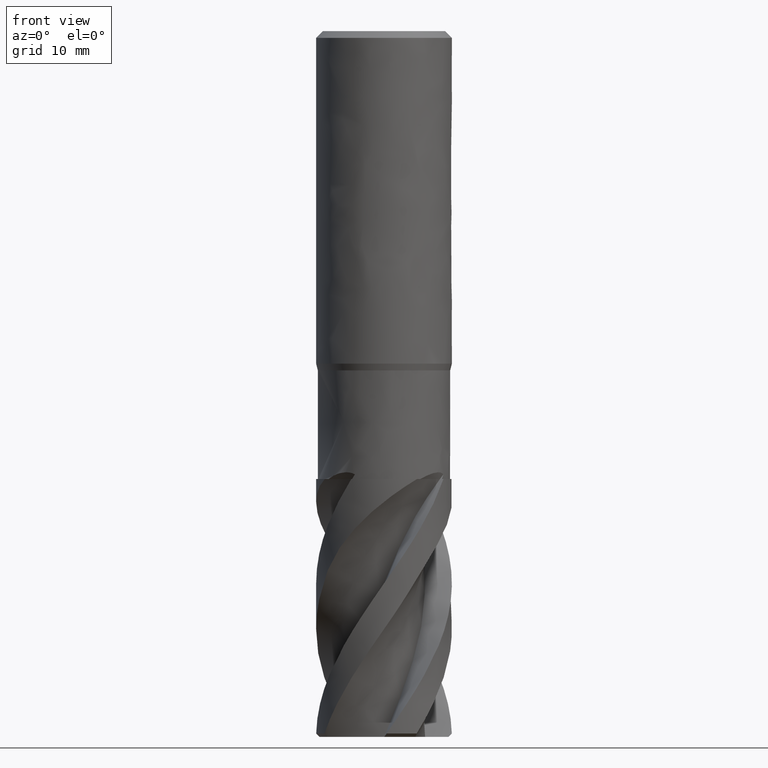
[diagram: clean part render]
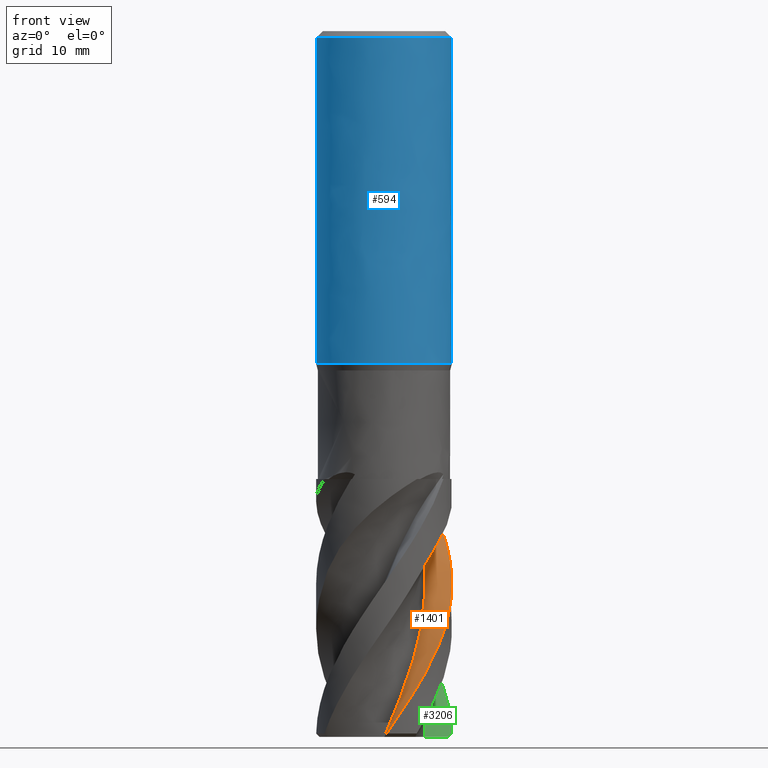
[diagram: same view with three faces highlighted in distinct colors, each labeled with its STEP entity id]
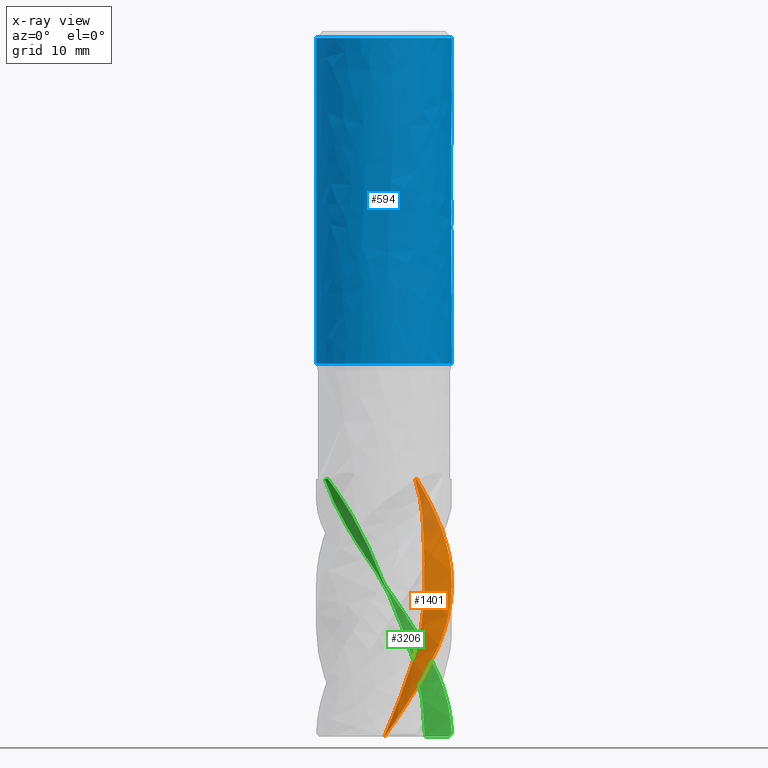
[diagram: x-ray of the same camera — body ghosted, the three highlighted faces saturated]
A machine part, front view with three faces highlighted in distinct colors.
The next image is the same camera in x-ray (body ghosted, the three faces saturated) — at least one of them is partly hidden behind the body in this view.
Their STEP definitions:

[orange] entity #1401 — the highlighted face is a freeform B-spline surface patch.
#1401 = ADVANCED_FACE('', (#1402), #1637, .T.);
#1402 = FACE_OUTER_BOUND('', #1403, .T.);
#1403 = EDGE_LOOP('', (#1404, #1414, #1445, #1453, #1462));
#1404 = ORIENTED_EDGE('', *, *, #1405, .F.);
#1405 = EDGE_CURVE('', #1406, #1408, #1410, .T.);
#1406 = VERTEX_POINT('', #1407);
#1407 = CARTESIAN_POINT('', (4.54373744884962, 8.24481654069184, -66.));
#1408 = VERTEX_POINT('', #1409);
#1409 = CARTESIAN_POINT('', (4.82659777095646, 8.75807935322569, -66.));
#1410 = LINE('', #1411, #1412);
#1411 = CARTESIAN_POINT('', (4.54373744884961, 8.24481654069185, -66.));
#1412 = VECTOR('', #1413, 0.586044944140416);
#1413 = DIRECTION('', (0.282860322106847, 0.513262812533846, 0.));
#1414 = ORIENTED_EDGE('', *, *, #1415, .F.);
#1415 = EDGE_CURVE('', #1416, #1406, #1418, .T.);
#1416 = VERTEX_POINT('', #1417);
#1417 = CARTESIAN_POINT('', (0.0210061638817225, -6.05980952317124, -104.));
#1418 = B_SPLINE_CURVE_WITH_KNOTS('', 3, (#1419, #1420, #1421, #1422, #1423, #1424, #1425, #1426, #1427, #1428, #1429, #1430, #1431, #1432, #1433, #1434, #1435, #1436, #1437, #1438, #1439, #1440, #1441, #1442, #1443, #1444), .UNSPECIFIED., .F., .U., (4, 1, 1, 1, 1, 1, 1, 1, 1, 1, 1, 1, 1, 1, 1, 1, 1, 1, 1, 1, 1, 1, 1, 4), (0.0499999999999916, 3.124, 4.686, 6.248, 7.81, 9.372, 10.934, 12.496, 14.058, 15.62, 17.182, 18.744, 20.306, 21.868, 23.43, 24.992, 26.554, 28.116, 29.678, 31.24, 32.802, 34.364, 35.926, 38.05), .UNSPECIFIED.);
#1419 = CARTESIAN_POINT('', (0.0210061638817183, -6.05980952317124, -104.));
#1420 = CARTESIAN_POINT('', (0.451478921269695, -6.05516728982624, -102.975333333333));
#1421 = CARTESIAN_POINT('', (1.09935672825959, -5.97968307938365, -101.43));
#1422 = CARTESIAN_POINT('', (1.93499733724724, -5.74506389234829, -99.364));
#1423 = CARTESIAN_POINT('', (2.54422500359819, -5.50162236334445, -97.802));
#1424 = CARTESIAN_POINT('', (3.12412444108722, -5.19483514754467, -96.24));
#1425 = CARTESIAN_POINT('', (3.66824456030732, -4.82810837840585, -94.678));
#1426 = CARTESIAN_POINT('', (4.17050613968466, -4.40548017147386, -93.116));
#1427 = CARTESIAN_POINT('', (4.62530372034135, -3.93161951667552, -91.554));
#1428 = CARTESIAN_POINT('', (5.02741938781425, -3.41164718816434, -89.992));
#1429 = CARTESIAN_POINT('', (5.37261513881706, -2.85157204005346, -88.43));
#1430 = CARTESIAN_POINT('', (5.65567038822671, -2.25641080543849, -86.868));
#1431 = CARTESIAN_POINT('', (5.85778492249725, -1.62889172666529, -85.306));
#1432 = CARTESIAN_POINT('', (5.97804394589137, -0.982432836130098, -83.744));
#1433 = CARTESIAN_POINT('', (6.0143187648056, -0.327622832683388, -82.182));
#1434 = CARTESIAN_POINT('', (5.96505771265827, 0.320183963239846, -80.62));
#1435 = CARTESIAN_POINT('', (5.93773006534497, 0.966344318816848, -79.058));
#1436 = CARTESIAN_POINT('', (5.91226307926383, 1.63124315779631, -77.496));
#1437 = CARTESIAN_POINT('', (5.88528136029755, 2.33066014168337, -75.934));
#1438 = CARTESIAN_POINT('', (5.84342040346166, 3.07928433564888, -74.372));
#1439 = CARTESIAN_POINT('', (5.77096522685264, 3.88873048805125, -72.81));
#1440 = CARTESIAN_POINT('', (5.64846437319031, 4.76710713012935, -71.248));
#1441 = CARTESIAN_POINT('', (5.4539111476265, 5.71832667276983, -69.686));
#1442 = CARTESIAN_POINT('', (5.12855741870002, 6.86417230553523, -67.9366666666667));
#1443 = CARTESIAN_POINT('', (4.78778915362057, 7.7304629707723, -66.708));
#1444 = CARTESIAN_POINT('', (4.54373744884962, 8.24481654069184, -66.));
#1445 = ORIENTED_EDGE('', *, *, #1446, .T.);
#1446 = EDGE_CURVE('', #1416, #1447, #1449, .T.);
#1447 = VERTEX_POINT('', #1448);
#1448 = CARTESIAN_POINT('', (0.0329312921690224, -9.4999429224599, -104.));
#1449 = LINE('', #1450, #1451);
#1450 = CARTESIAN_POINT('', (0.0210061638817225, -6.05980952317124, -104.));
#1451 = VECTOR('', #1452, 3.440154068292);
#1452 = DIRECTION('', (0.0119251282873042, -3.44013339928866, 1.4210854715202E-14));
#1453 = ORIENTED_EDGE('', *, *, #1454, .T.);
#1454 = EDGE_CURVE('', #1447, #1455, #1457, .T.);
#1455 = VERTEX_POINT('', #1456);
#1456 = CARTESIAN_POINT('', (0.381212165986018, -9.99273122246887, -103.5));
#1457 = B_SPLINE_CURVE_WITH_KNOTS('', 3, (#1458, #1459, #1460, #1461), .UNSPECIFIED., .F., .U., (4, 4), (0., 0.783670769961757), .UNSPECIFIED.);
#1458 = CARTESIAN_POINT('', (0.032931292169022, -9.4999429224599, -104.));
#1459 = CARTESIAN_POINT('', (0.143794365409603, -9.66700418012523, -103.832555444565));
#1460 = CARTESIAN_POINT('', (0.259989500001834, -9.83137893060818, -103.665856163976));
#1461 = CARTESIAN_POINT('', (0.38121216598601, -9.99273122246887, -103.5));
#1462 = ORIENTED_EDGE('', *, *, #1463, .T.);
#1463 = EDGE_CURVE('', #1455, #1408, #1464, .T.);
#1464 = B_SPLINE_CURVE_WITH_KNOTS('', 3, (#1465, #1466, #1467, #1468, #1469, #1470, #1471, #1472, #1473, #1474, #1475, #1476, #1477, #1478, #1479, #1480, #1481, #1482, #1483, #1484, #1485, #1486, #1487, #1488, #1489, #1490, #1491, #1492, #1493, #1494, #1495, #1496, #1497, #1498, #1499, #1500, #1501, #1502, #1503, #1504, #1505, #1506, #1507, #1508, #1509, #1510, #1511, #1512, #1513, #1514, #1515, #1516, #1517, #1518, #1519, #1520, #1521, #1522, #1523, #1524, #1525, #1526, #1527, #1528, #1529, #1530, #1531, #1532, #1533, #1534, #1535, #1536, #1537, #1538, #1539, #1540, #1541, #1542, #1543, #1544, #1545, #1546, #1547, #1548, #1549, #1550, #1551, #1552, #1553, #1554, #1555, #1556, #1557, #1558, #1559, #1560, #1561, #1562, #1563, #1564, #1565, #1566, #1567, #1568, #1569, #1570, #1571, #1572, #1573, #1574, #1575, #1576, #1577, #1578, #1579, #1580, #1581, #1582, #1583, #1584, #1585, #1586, #1587, #1588, #1589, #1590, #1591, #1592, #1593, #1594, #1595, #1596, #1597, #1598, #1599, #1600, #1601, #1602, #1603, #1604, #1605, #1606, #1607, #1608, #1609, #1610, #1611, #1612, #1613, #1614, #1615, #1616, #1617, #1618, #1619, #1620, #1621, #1622, #1623, #1624, #1625, #1626, #1627, #1628, #1629, #1630, #1631, #1632, #1633, #1634, #1635, #1636), .UNSPECIFIED., .F., .U., (4, 3, 3, 3, 3, 3, 3, 3, 3, 3, 3, 3, 3, 3, 3, 3, 3, 3, 3, 3, 3, 3, 3, 3, 3, 3, 3, 3, 3, 3, 3, 3, 3, 3, 3, 3, 3, 3, 3, 3, 3, 3, 3, 3, 3, 3, 3, 3, 3, 3, 3, 3, 3, 3, 3, 3, 3, 4), (0., 1.50019389703991, 2.9998743749866, 4.49905475742759, 5.49770750414473, 6.49622074612984, 7.49459598662728, 8.49283549884524, 9.49094023268371, 10.4889117743659, 11.4867509465896, 12.4844588771655, 13.4820357447394, 14.4794818466203, 15.4767982398034, 16.4739827422443, 17.4710358254384, 18.1358123858625, 18.5790458597469, 19.5757821239086, 20.2404083912893, 21.2369224862458, 22.2332867542758, 23.2295110322367, 24.2256323112436, 25.2215687936951, 25.8857991145401, 26.3287939679017, 26.7718309210119, 26.9031704834833, 27.3469670084975, 27.7907324079612, 28.2344483481404, 29.2338625427268, 29.6775540322148, 30.1212449151081, 31.120482271153, 31.7861601175669, 32.7850812661084, 33.7838565024265, 34.7824711915549, 35.4478980948708, 36.1132791624477, 36.7786120260139, 37.4439032928942, 38.1091490221567, 38.7743474531606, 39.4395054949006, 40.1046163156368, 40.7696809158311, 41.4347063498659, 42.0996854451412, 42.7646222712351, 43.4295220463284, 44.094368312011, 44.7591675688588, 45.4239289212549, 45.6286047567852), .UNSPECIFIED.);
#1465 = CARTESIAN_POINT('', (0.381212165986021, -9.99273122246887, -103.5));
#1466 = CARTESIAN_POINT('', (0.665914972821524, -9.98187011040253, -103.08903651677));
#1467 = CARTESIAN_POINT('', (0.950235794316265, -9.95882652936517, -102.677950220319));
#1468 = CARTESIAN_POINT('', (1.23297221649105, -9.92369787495385, -102.266987047104));
#1469 = CARTESIAN_POINT('', (1.51561187632212, -9.88858124280307, -101.856164519934));
#1470 = CARTESIAN_POINT('', (1.79683375773521, -9.84136711242229, -101.445220699274));
#1471 = CARTESIAN_POINT('', (2.07544469071456, -9.78225584084702, -101.034397976449));
#1472 = CARTESIAN_POINT('', (2.35396271585289, -9.72316428099148, -100.62371224987));
#1473 = CARTESIAN_POINT('', (2.63003691110684, -9.65214847773068, -100.212905107744));
#1474 = CARTESIAN_POINT('', (2.90249814518238, -9.56950910534146, -99.8022197307876));
#1475 = CARTESIAN_POINT('', (3.083993422849, -9.51446033523342, -99.5286488619733));
#1476 = CARTESIAN_POINT('', (3.26394558711793, -9.45423873593147, -99.2550419580644));
#1477 = CARTESIAN_POINT('', (3.44201644613317, -9.38895749189167, -98.9814710321316));
#1478 = CARTESIAN_POINT('', (3.62006242990769, -9.32368536718037, -98.7079383221241));
#1479 = CARTESIAN_POINT('', (3.79627433708064, -9.25333788134955, -98.4343697463546));
#1480 = CARTESIAN_POINT('', (3.9703206790897, -9.17804737976399, -98.1608369745504));
#1481 = CARTESIAN_POINT('', (4.14434296668154, -9.10276728385037, -97.8873420068813));
#1482 = CARTESIAN_POINT('', (4.3162459125925, -9.0225258155825, -97.6138110159751));
#1483 = CARTESIAN_POINT('', (4.48570680129825, -8.93747360794909, -97.3403160874379));
#1484 = CARTESIAN_POINT('', (4.65514465193782, -8.85243296309222, -97.0668583403077));
#1485 = CARTESIAN_POINT('', (4.82218543019962, -8.76256062864425, -96.7933647961833));
#1486 = CARTESIAN_POINT('', (4.98651504249611, -8.66802559588744, -96.5199070442787));
#1487 = CARTESIAN_POINT('', (5.15082246765358, -8.57350332687958, -96.246486213566));
#1488 = CARTESIAN_POINT('', (5.31246257889584, -8.47429482428779, -95.9730294587141));
#1489 = CARTESIAN_POINT('', (5.47113194119559, -8.37058631650312, -95.6996086861888));
#1490 = CARTESIAN_POINT('', (5.62978012985116, -8.26689164810755, -95.4262244003177));
#1491 = CARTESIAN_POINT('', (5.78549979636941, -8.15867108426631, -95.1528042599496));
#1492 = CARTESIAN_POINT('', (5.93799834491191, -8.04612799151388, -94.8794198332813));
#1493 = CARTESIAN_POINT('', (6.09047666627412, -7.93359982630962, -94.606071667916));
#1494 = CARTESIAN_POINT('', (6.23977477843777, -7.81672073179947, -94.3326876077699));
#1495 = CARTESIAN_POINT('', (6.38561261309442, -7.69570994486469, -94.05933954872));
#1496 = CARTESIAN_POINT('', (6.53143126630555, -7.57471507397682, -93.7860274420067));
#1497 = CARTESIAN_POINT('', (6.67382860271253, -7.4495580146769, -93.5126795460522));
#1498 = CARTESIAN_POINT('', (6.81253725263981, -7.32047376755049, -93.2393674283905));
#1499 = CARTESIAN_POINT('', (6.95122768123044, -7.19140647745972, -92.9660912141285));
#1500 = CARTESIAN_POINT('', (7.08626682744031, -7.05837912382121, -92.692779252469));
#1501 = CARTESIAN_POINT('', (7.21740116601184, -6.92164145335851, -92.4195030472128));
#1502 = CARTESIAN_POINT('', (7.34851831505822, -6.78492170692433, -92.1462626639103));
#1503 = CARTESIAN_POINT('', (7.4757658739498, -6.64445698266511, -91.8729862856165));
#1504 = CARTESIAN_POINT('', (7.59890550808496, -6.5005103706706, -91.5997459037057));
#1505 = CARTESIAN_POINT('', (7.7220291290425, -6.35658247760994, -91.3265410541952));
#1506 = CARTESIAN_POINT('', (7.84107843747769, -6.20913551709406, -91.0533009823612));
#1507 = CARTESIAN_POINT('', (7.95582953207273, -6.05844670328949, -90.7800966231023));
#1508 = CARTESIAN_POINT('', (8.07056545133611, -5.90777781742318, -90.5069283939281));
#1509 = CARTESIAN_POINT('', (8.18103414920721, -5.75382865754207, -90.2337241786196));
#1510 = CARTESIAN_POINT('', (8.28702686353159, -5.5968907228126, -89.9605532524203));
#1511 = CARTESIAN_POINT('', (8.39300560904414, -5.43997347098094, -89.6874183274999));
#1512 = CARTESIAN_POINT('', (8.4945371129414, -5.28002782108503, -89.414244742144));
#1513 = CARTESIAN_POINT('', (8.59143559714708, -5.11734641978379, -89.1411098833958));
#1514 = CARTESIAN_POINT('', (8.65604182737324, -5.00887999585426, -88.9589995675148));
#1515 = CARTESIAN_POINT('', (8.71859845683832, -4.89918178971349, -88.7768800913626));
#1516 = CARTESIAN_POINT('', (8.77905539893496, -4.78833857433148, -88.5947761731993));
#1517 = CARTESIAN_POINT('', (8.81936449233746, -4.71443491055166, -88.4733601109301));
#1518 = CARTESIAN_POINT('', (8.85874347881305, -4.64001632529936, -88.3519440302105));
#1519 = CARTESIAN_POINT('', (8.89717599190995, -4.56511329202038, -88.2305318716323));
#1520 = CARTESIAN_POINT('', (8.98360240549023, -4.3966725627799, -87.9575021739777));
#1521 = CARTESIAN_POINT('', (9.06525110959404, -4.22576031910591, -87.684432004459));
#1522 = CARTESIAN_POINT('', (9.141962079488, -4.05271875871043, -87.4113769449808));
#1523 = CARTESIAN_POINT('', (9.19311314865337, -3.93733420762851, -87.2293031392053));
#1524 = CARTESIAN_POINT('', (9.24207790372011, -3.82098477926706, -87.0472109123807));
#1525 = CARTESIAN_POINT('', (9.28882250992175, -3.70375166272942, -86.8651333590343));
#1526 = CARTESIAN_POINT('', (9.35890950652318, -3.52797700746962, -86.5921335436643));
#1527 = CARTESIAN_POINT('', (9.42402080062989, -3.35017183783182, -86.3191108523516));
#1528 = CARTESIAN_POINT('', (9.48402907192758, -3.17067698809456, -86.0461302266472));
#1529 = CARTESIAN_POINT('', (9.54402832091951, -2.99120912559393, -85.7731906438626));
#1530 = CARTESIAN_POINT('', (9.59894112192461, -2.81000604379958, -85.5002210868296));
#1531 = CARTESIAN_POINT('', (9.64865770208628, -2.62743307202507, -85.2272741853356));
#1532 = CARTESIAN_POINT('', (9.69836729702405, -2.44488575191607, -84.9543656331248));
#1533 = CARTESIAN_POINT('', (9.7428971125946, -2.26091792894368, -84.6814109802501));
#1534 = CARTESIAN_POINT('', (9.78217068622416, -2.07584601200976, -84.4085014389102));
#1535 = CARTESIAN_POINT('', (9.8214401993855, -1.89079322953612, -84.135620113503));
#1536 = CARTESIAN_POINT('', (9.8554653315118, -1.7045849802937, -83.8627148261836));
#1537 = CARTESIAN_POINT('', (9.8841814662907, -1.51754958450634, -83.5898705683236));
#1538 = CARTESIAN_POINT('', (9.91289227376367, -1.33054888680002, -83.3170769274719));
#1539 = CARTESIAN_POINT('', (9.93629917091784, -1.14268725194747, -83.0442624804047));
#1540 = CARTESIAN_POINT('', (9.95435118366563, -0.954406890301293, -82.7714354799966));
#1541 = CARTESIAN_POINT('', (9.96639080108164, -0.828835102111321, -82.5894761189235));
#1542 = CARTESIAN_POINT('', (9.97605127959485, -0.70305899591643, -82.4074847189199));
#1543 = CARTESIAN_POINT('', (9.98332757143547, -0.577209322011025, -82.225464526046));
#1544 = CARTESIAN_POINT('', (9.98818034574551, -0.493276451005678, -82.1040698740397));
#1545 = CARTESIAN_POINT('', (9.99197336499975, -0.409309333992007, -81.9826519122623));
#1546 = CARTESIAN_POINT('', (9.99470775244356, -0.325295163266436, -81.8612472993679));
#1547 = CARTESIAN_POINT('', (9.99744239974824, -0.241273008304841, -81.7398311488594));
#1548 = CARTESIAN_POINT('', (9.99911819092171, -0.157198593194528, -81.618422668708));
#1549 = CARTESIAN_POINT('', (9.99973294812989, -0.0730819135323162, -81.4970427333778));
#1550 = CARTESIAN_POINT('', (9.99991519464947, -0.0481452850505928, -81.461059306968));
#1551 = CARTESIAN_POINT('', (10.0000041856459, -0.0232048666532969, -81.4250779134358));
#1552 = CARTESIAN_POINT('', (9.99999984885575, 0.00173864458913075, -81.3890987964634));
#1553 = CARTESIAN_POINT('', (9.99998519483709, 0.0860227963156844, -81.2675253209245));
#1554 = CARTESIAN_POINT('', (9.99890476216977, 0.170347092871089, -81.1459751182407));
#1555 = CARTESIAN_POINT('', (9.99675669278046, 0.254667676294202, -81.0244458896136));
#1556 = CARTESIAN_POINT('', (9.99460877404542, 0.33898234591578, -80.9029251844063));
#1557 = CARTESIAN_POINT('', (9.99139303662584, 0.423297672962281, -80.7814191244146));
#1558 = CARTESIAN_POINT('', (9.98711166144725, 0.507543753566461, -80.659907287165));
#1559 = CARTESIAN_POINT('', (9.98283076344366, 0.591780444635373, -80.5384089928562));
#1560 = CARTESIAN_POINT('', (9.9774849027045, 0.675945362661637, -80.4168937808918));
#1561 = CARTESIAN_POINT('', (9.97107777576445, 0.760005256334671, -80.2953665628295));
#1562 = CARTESIAN_POINT('', (9.95664653038747, 0.949339565348505, -80.0216418309414));
#1563 = CARTESIAN_POINT('', (9.93682853879009, 1.13817248089157, -79.7478010585479));
#1564 = CARTESIAN_POINT('', (9.9116658305211, 1.32622790804688, -79.47397088364));
#1565 = CARTESIAN_POINT('', (9.90049480696361, 1.4097154080572, -79.3524035506666));
#1566 = CARTESIAN_POINT('', (9.88826943823008, 1.49305818737372, -79.2308290567183));
#1567 = CARTESIAN_POINT('', (9.87499227582164, 1.576238418661, -79.1092628732916));
#1568 = CARTESIAN_POINT('', (9.86171513156514, 1.65941853622806, -78.9876968560646));
#1569 = CARTESIAN_POINT('', (9.84738506172949, 1.74244245297301, -78.8661342955398));
#1570 = CARTESIAN_POINT('', (9.83200688306774, 1.82527823942231, -78.7445807881166));
#1571 = CARTESIAN_POINT('', (9.79737364813051, 2.01183292293924, -78.4708298275751));
#1572 = CARTESIAN_POINT('', (9.75741548189679, 2.1974680255325, -78.1970725748542));
#1573 = CARTESIAN_POINT('', (9.71220977541694, 2.38180210729109, -77.923359057275));
#1574 = CARTESIAN_POINT('', (9.6820943707505, 2.50460287512008, -77.7410149687416));
#1575 = CARTESIAN_POINT('', (9.64964656927599, 2.62684353852652, -77.5586631234595));
#1576 = CARTESIAN_POINT('', (9.61489696468763, 2.74840978721163, -77.37631607807));
#1577 = CARTESIAN_POINT('', (9.5627514484837, 2.9308330080152, -77.1026847397359));
#1578 = CARTESIAN_POINT('', (9.50541014517108, 3.11177844998545, -76.8290051407582));
#1579 = CARTESIAN_POINT('', (9.44298057926158, 3.29091442910465, -76.5553550979072));
#1580 = CARTESIAN_POINT('', (9.38056013242696, 3.47002424186525, -76.2817450270661));
#1581 = CARTESIAN_POINT('', (9.31303565554249, 3.64737518223184, -76.0080947889057));
#1582 = CARTESIAN_POINT('', (9.24052728253352, 3.82265032938589, -75.7344887460091));
#1583 = CARTESIAN_POINT('', (9.16803056481504, 3.99789730210058, -75.4609266836595));
#1584 = CARTESIAN_POINT('', (9.09053508422156, 4.17110779056317, -75.1873315758993));
#1585 = CARTESIAN_POINT('', (9.00818861643051, 4.34195092680836, -74.9137714188537));
#1586 = CARTESIAN_POINT('', (8.95331704718788, 4.45579225153757, -74.7314846067777));
#1587 = CARTESIAN_POINT('', (8.89628391094961, 4.56859975873662, -74.549187089021));
#1588 = CARTESIAN_POINT('', (8.83713586215609, 4.68028094816911, -74.3669014932244));
#1589 = CARTESIAN_POINT('', (8.77799188758096, 4.79195444481097, -74.1846284535702));
#1590 = CARTESIAN_POINT('', (8.71672656215689, 4.90251432905176, -74.0023457366703));
#1591 = CARTESIAN_POINT('', (8.65339295515198, 5.01186495864824, -73.8200719464641));
#1592 = CARTESIAN_POINT('', (8.59006393639585, 5.12120766625958, -73.6378113612139));
#1593 = CARTESIAN_POINT('', (8.52465955329713, 5.22935417423097, -73.4555385307089));
#1594 = CARTESIAN_POINT('', (8.45723381646016, 5.33621552916698, -73.2732757147169));
#1595 = CARTESIAN_POINT('', (8.38981229508787, 5.44307020311901, -73.0910242938167));
#1596 = CARTESIAN_POINT('', (8.32036163418251, 5.54865268631194, -72.9087619082389));
#1597 = CARTESIAN_POINT('', (8.24893744215978, 5.65287812316297, -72.7265126108005));
#1598 = CARTESIAN_POINT('', (8.17751813895452, 5.7570964260287, -72.5442757878965));
#1599 = CARTESIAN_POINT('', (8.10411822624973, 5.85996841668445, -72.3620295142679));
#1600 = CARTESIAN_POINT('', (8.02880118706831, 5.96140516141375, -72.1797924116451));
#1601 = CARTESIAN_POINT('', (7.95348950284768, 6.06283469409918, -71.9975682658851));
#1602 = CARTESIAN_POINT('', (7.87625217647623, 6.16284114039405, -71.8153321333771));
#1603 = CARTESIAN_POINT('', (7.79715263508954, 6.26134257049686, -71.6331065314464));
#1604 = CARTESIAN_POINT('', (7.71805789643854, 6.35983801982754, -71.4508919938201));
#1605 = CARTESIAN_POINT('', (7.63709129284904, 6.45684094539999, -71.2686674873394));
#1606 = CARTESIAN_POINT('', (7.55431866833124, 6.55227208358308, -71.0864559085662));
#1607 = CARTESIAN_POINT('', (7.47155192002057, 6.64769644690385, -70.904257265386));
#1608 = CARTESIAN_POINT('', (7.38697138790686, 6.74155837438778, -70.7220485409803));
#1609 = CARTESIAN_POINT('', (7.30065020563192, 6.83377688946651, -70.5398484084744));
#1610 = CARTESIAN_POINT('', (7.21433502207432, 6.92598899600459, -70.3576609376012));
#1611 = CARTESIAN_POINT('', (7.12626935130379, 7.01656879802021, -70.1754609145591));
#1612 = CARTESIAN_POINT('', (7.03652515155225, 7.10544254720089, -69.9932711965027));
#1613 = CARTESIAN_POINT('', (6.9467862369048, 7.19431106253898, -69.8110922077371));
#1614 = CARTESIAN_POINT('', (6.85535735618798, 7.28148521949007, -69.628903441534));
#1615 = CARTESIAN_POINT('', (6.76231410609024, 7.36689269166947, -69.4467266398404));
#1616 = CARTESIAN_POINT('', (6.66927733921641, 7.45229421268353, -69.2645625321681));
#1617 = CARTESIAN_POINT('', (6.57461716605446, 7.53593776353226, -69.0823876772638));
#1618 = CARTESIAN_POINT('', (6.47841349441721, 7.61775285732959, -68.9002224613296));
#1619 = CARTESIAN_POINT('', (6.38221593793526, 7.69956275057691, -68.7180688246685));
#1620 = CARTESIAN_POINT('', (6.28446383522098, 7.7795540777312, -68.5359036948798));
#1621 = CARTESIAN_POINT('', (6.18523507048135, 7.8576629555414, -68.3537514747161));
#1622 = CARTESIAN_POINT('', (6.08601183487602, 7.93576748104029, -68.1716094042715));
#1623 = CARTESIAN_POINT('', (5.985297900887, 8.01200078461095, -67.9894612978289));
#1624 = CARTESIAN_POINT('', (5.88318128842664, 8.08629568637622, -67.8073246286912));
#1625 = CARTESIAN_POINT('', (5.78107289404661, 8.16058460908035, -67.6252026174407));
#1626 = CARTESIAN_POINT('', (5.67755216490629, 8.23294262544958, -67.4430691166411));
#1627 = CARTESIAN_POINT('', (5.57271043628441, 8.30330647352769, -67.2609413152363));
#1628 = CARTESIAN_POINT('', (5.46787612063564, 8.37366534643683, -67.0788263914186));
#1629 = CARTESIAN_POINT('', (5.36170874574085, 8.44203866411742, -66.896696049198));
#1630 = CARTESIAN_POINT('', (5.25429589421937, 8.50837085792513, -66.7145725482312));
#1631 = CARTESIAN_POINT('', (5.1468891669906, 8.5746992697108, -66.5324594312885));
#1632 = CARTESIAN_POINT('', (5.03822454772495, 8.63899462704441, -66.3503320427392));
#1633 = CARTESIAN_POINT('', (4.92838663755549, 8.70120710883062, -66.1682164442139));
#1634 = CARTESIAN_POINT('', (4.89456823647697, 8.72036194032633, -66.1121441979004));
#1635 = CARTESIAN_POINT('', (4.86063780520809, 8.73931981168515, -66.0560717780806));
#1636 = CARTESIAN_POINT('', (4.82659777095646, 8.75807935322569, -66.));
#1637 = B_SPLINE_SURFACE_WITH_KNOTS('', 3, 1, ((#1638, #1639), (#1640, #1641), (#1642, #1643), (#1644, #1645), (#1646, #1647), (#1648, #1649), (#1650, #1651), (#1652, #1653), (#1654, #1655), (#1656, #1657), (#1658, #1659), (#1660, #1661), (#1662, #1663), (#1664, #1665), (#1666, #1667), (#1668, #1669), (#1670, #1671), (#1672, #1673), (#1674, #1675), (#1676, #1677), (#1678, #1679), (#1680, #1681), (#1682, #1683), (#1684, #1685), (#1686, #1687), (#1688, #1689)), .UNSPECIFIED., .F., .F., .U., (4, 1, 1, 1, 1, 1, 1, 1, 1, 1, 1, 1, 1, 1, 1, 1, 1, 1, 1, 1, 1, 1, 1, 4), (2, 2), (0.0499999999999694, 3.124, 4.686, 6.248, 7.81, 9.372, 10.934, 12.496, 14.058, 15.62, 17.182, 18.744, 20.306, 21.868, 23.43, 24.992, 26.554, 28.116, 29.678, 31.24, 32.802, 34.364, 35.926, 38.0500000000001), (0.192284066932546, 1.), .UNSPECIFIED.);
#1638 = CARTESIAN_POINT('', (0.0351453415982776, -10.138646775854, -104.));
#1639 = CARTESIAN_POINT('', (0.021006163881709, -6.05980952317124, -104.));
#1640 = CARTESIAN_POINT('', (0.755367853064384, -10.1308798709775, -102.975333333333));
#1641 = CARTESIAN_POINT('', (0.451478921269689, -6.05516728982624, -102.975333333333));
#1642 = CARTESIAN_POINT('', (1.83933001620974, -10.0045874943104, -101.43));
#1643 = CARTESIAN_POINT('', (1.09935672825959, -5.97968307938365, -101.43));
#1644 = CARTESIAN_POINT('', (3.23743748702865, -9.61204692763182, -99.364));
#1645 = CARTESIAN_POINT('', (1.93499733724724, -5.74506389234829, -99.364));
#1646 = CARTESIAN_POINT('', (4.25673423086057, -9.20474573050573, -97.802));
#1647 = CARTESIAN_POINT('', (2.54422500359819, -5.50162236334445, -97.802));
#1648 = CARTESIAN_POINT('', (5.22696201438023, -8.69146107948689, -96.24));
#1649 = CARTESIAN_POINT('', (3.12412444108722, -5.19483514754467, -96.24));
#1650 = CARTESIAN_POINT('', (6.13732754176419, -8.07789176491825, -94.678));
#1651 = CARTESIAN_POINT('', (3.66824456030732, -4.82810837840585, -94.678));
#1652 = CARTESIAN_POINT('', (6.97765968800044, -7.37079394423401, -93.116));
#1653 = CARTESIAN_POINT('', (4.17050613968466, -4.40548017147386, -93.116));
#1654 = CARTESIAN_POINT('', (7.73857997883792, -6.57797928865701, -91.554));
#1655 = CARTESIAN_POINT('', (4.62530372034135, -3.93161951667552, -91.554));
#1656 = CARTESIAN_POINT('', (8.41135833927241, -5.70801534806861, -89.992));
#1657 = CARTESIAN_POINT('', (5.02741938781425, -3.41164718816434, -89.992));
#1658 = CARTESIAN_POINT('', (8.98890418036869, -4.77095551592084, -88.43));
#1659 = CARTESIAN_POINT('', (5.37261513881706, -2.85157204005346, -88.43));
#1660 = CARTESIAN_POINT('', (9.46248295885046, -3.77519327135368, -86.868));
#1661 = CARTESIAN_POINT('', (5.65567038822671, -2.25641080543849, -86.868));
#1662 = CARTESIAN_POINT('', (9.80064010115003, -2.72529322738972, -85.306));
#1663 = CARTESIAN_POINT('', (5.85778492249725, -1.62889172666529, -85.306));
#1664 = CARTESIAN_POINT('', (10.0018450656196, -1.64370504855587, -83.744));
#1665 = CARTESIAN_POINT('', (5.97804394589137, -0.982432836130098, -83.744));
#1666 = CARTESIAN_POINT('', (10.0625363422056, -0.548144651012613, -82.182));
#1667 = CARTESIAN_POINT('', (6.0143187648056, -0.327622832683388, -82.182));
#1668 = CARTESIAN_POINT('', (9.9801178428091, 0.535698703757766, -80.62));
#1669 = CARTESIAN_POINT('', (5.96505771265827, 0.320183963239846, -80.62));
#1670 = CARTESIAN_POINT('', (9.93439604870563, 1.61678740476483, -79.058));
#1671 = CARTESIAN_POINT('', (5.93773006534497, 0.966344318816848, -79.058));
#1672 = CARTESIAN_POINT('', (9.8917873206037, 2.72922739884576, -77.496));
#1673 = CARTESIAN_POINT('', (5.91226307926383, 1.63124315779631, -77.496));
#1674 = CARTESIAN_POINT('', (9.84664429804525, 3.8994195841858, -75.934));
#1675 = CARTESIAN_POINT('', (5.88528136029755, 2.33066014168337, -75.934));
#1676 = CARTESIAN_POINT('', (9.77660687303452, 5.1519401859394, -74.372));
#1677 = CARTESIAN_POINT('', (5.84342040346166, 3.07928433564888, -74.372));
#1678 = CARTESIAN_POINT('', (9.65538236260856, 6.50622180022138, -72.81));
#1679 = CARTESIAN_POINT('', (5.77096522685264, 3.88873048805125, -72.81));
#1680 = CARTESIAN_POINT('', (9.45042659951504, 7.97583078316679, -71.248));
#1681 = CARTESIAN_POINT('', (5.64846437319031, 4.76710713012935, -71.248));
#1682 = CARTESIAN_POINT('', (9.12492025718661, 9.56731297617049, -69.686));
#1683 = CARTESIAN_POINT('', (5.4539111476265, 5.71832667276983, -69.686));
#1684 = CARTESIAN_POINT('', (8.58057203597942, 11.4844234209529, -67.9366666666666));
#1685 = CARTESIAN_POINT('', (5.12855741870001, 6.86417230553526, -67.9366666666666));
#1686 = CARTESIAN_POINT('', (8.01043380657626, 12.9338113970064, -66.7079999999999));
#1687 = CARTESIAN_POINT('', (4.78778915362054, 7.73046297077236, -66.7079999999999));
#1688 = CARTESIAN_POINT('', (7.60211172644213, 13.7943746116377, -65.9999999999999));
#1689 = CARTESIAN_POINT('', (4.54373744884957, 8.24481654069194, -65.9999999999999));

[blue] entity #594 — the highlighted face is a freeform B-spline surface patch.
#504 = VERTEX_POINT('', #505);
#505 = CARTESIAN_POINT('', (-10., 3.61270805748469E-15, -49.));
#511 = EDGE_CURVE('', #504, #504, #512, .T.);
#512 = CIRCLE('', #513, 10.);
#513 = AXIS2_PLACEMENT_3D('', #514, #515, #516);
#514 = CARTESIAN_POINT('', (1.83720573376078E-31, 3.00038465791102E-15, -49.));
#515 = DIRECTION('', (3.74939945665464E-33, 6.12323399573677E-17, -1.));
#516 = DIRECTION('', (-1., 6.12323399573677E-17, 0.));
#543 = VERTEX_POINT('', #544);
#544 = CARTESIAN_POINT('', (-10., 6.73555739531045E-16, -1.));
#560 = EDGE_CURVE('', #543, #543, #561, .T.);
#561 = CIRCLE('', #562, 10.);
#562 = AXIS2_PLACEMENT_3D('', #563, #564, #565);
#563 = CARTESIAN_POINT('', (3.74939945665462E-33, 6.1232339957368E-17, -1.));
#564 = DIRECTION('', (3.74939945665464E-33, 6.12323399573677E-17, -1.));
#565 = DIRECTION('', (-1., 6.12323399573677E-17, 0.));
#594 = ADVANCED_FACE('', (#595, #606), #798, .T.);
#595 = FACE_OUTER_BOUND('', #596, .T.);
#596 = EDGE_LOOP('', (#597, #603, #604, #605));
#597 = ORIENTED_EDGE('', *, *, #598, .T.);
#598 = EDGE_CURVE('', #504, #543, #599, .T.);
#599 = LINE('', #600, #601);
#600 = CARTESIAN_POINT('', (-10., 3.61270805748469E-15, -49.));
#601 = VECTOR('', #602, 48.);
#602 = DIRECTION('', (0., -2.93915231795365E-15, 48.));
#603 = ORIENTED_EDGE('', *, *, #560, .T.);
#604 = ORIENTED_EDGE('', *, *, #598, .F.);
#605 = ORIENTED_EDGE('', *, *, #511, .F.);
#606 = FACE_BOUND('', #607, .T.);
#607 = EDGE_LOOP('', (#608, #700, #708, #792));
#608 = ORIENTED_EDGE('', *, *, #609, .F.);
#609 = EDGE_CURVE('', #610, #612, #614, .T.);
#610 = VERTEX_POINT('', #611);
#611 = CARTESIAN_POINT('', (-5.72363520850167, 8.2, -19.5));
#612 = VERTEX_POINT('', #613);
#613 = CARTESIAN_POINT('', (5.72363520850167, 8.2, -19.5));
#614 = B_SPLINE_CURVE_WITH_KNOTS('', 3, (#615, #616, #617, #618, #619, #620, #621, #622, #623, #624, #625, #626, #627, #628, #629, #630, #631, #632, #633, #634, #635, #636, #637, #638, #639, #640, #641, #642, #643, #644, #645, #646, #647, #648, #649, #650, #651, #652, #653, #654, #655, #656, #657, #658, #659, #660, #661, #662, #663, #664, #665, #666, #667, #668, #669, #670, #671, #672, #673, #674, #675, #676, #677, #678, #679, #680, #681, #682, #683, #684, #685, #686, #687, #688, #689, #690, #691, #692, #693, #694, #695, #696, #697, #698, #699), .UNSPECIFIED., .F., .U., (4, 3, 3, 3, 3, 3, 3, 3, 3, 3, 3, 3, 3, 3, 3, 3, 3, 3, 3, 3, 3, 3, 3, 3, 3, 3, 3, 3, 4), (0., 0.21483523043303, 0.65863517061522, 1.32502682191206, 1.99179739074618, 2.43602472815119, 2.8803816900067, 3.32487669560977, 3.76951701580744, 4.21430821751335, 4.65925360149793, 5.10435369908633, 5.54960590406211, 5.99500431249795, 6.43859379661985, 6.88218328074175, 7.3275816891776, 7.77283389415337, 8.21793399174177, 8.66287937572636, 9.10767057743226, 9.55231089762993, 9.996805903233, 10.4411628650885, 10.8853902024935, 11.5521607713276, 12.2185524226245, 12.6623523628067, 12.8771875932397), .UNSPECIFIED.);
#615 = CARTESIAN_POINT('', (-5.72363520850167, 8.2, -19.5));
#616 = CARTESIAN_POINT('', (-5.6728930158593, 8.23541826833713, -19.4639581082939));
#617 = CARTESIAN_POINT('', (-5.6216485315536, 8.27048663108921, -19.4282722830979));
#618 = CARTESIAN_POINT('', (-5.56990696564429, 8.30518731842138, -19.3929606071275));
#619 = CARTESIAN_POINT('', (-5.46302084734237, 8.37687091952933, -19.3200148446852));
#620 = CARTESIAN_POINT('', (-5.35397695728277, 8.44700929904563, -19.2486415111583));
#621 = CARTESIAN_POINT('', (-5.24283382249235, 8.51543853889692, -19.1790074107901));
#622 = CARTESIAN_POINT('', (-5.07594588399264, 8.61818905779687, -19.0744477231258));
#623 = CARTESIAN_POINT('', (-4.90416694786555, 8.71717927036005, -18.9737145509896));
#624 = CARTESIAN_POINT('', (-4.7277811637584, 8.81181509495132, -18.8774124362456));
#625 = CARTESIAN_POINT('', (-4.55129508477692, 8.90650473050125, -18.7810555630721));
#626 = CARTESIAN_POINT('', (-4.36998064521542, 8.99694870073075, -18.6890191103169));
#627 = CARTESIAN_POINT('', (-4.18425099631693, 9.0825130663171, -18.6019481793212));
#628 = CARTESIAN_POINT('', (-4.06051100048656, 9.13951922717335, -18.5439382885889));
#629 = CARTESIAN_POINT('', (-3.93472153449951, 9.19440218341652, -18.4880889865677));
#630 = CARTESIAN_POINT('', (-3.80704281642226, 9.24696842180873, -18.4345971937591));
#631 = CARTESIAN_POINT('', (-3.67932684200737, 9.29954999890072, -18.3810897921761));
#632 = CARTESIAN_POINT('', (-3.54963587429379, 9.34984793870215, -18.3299062367829));
#633 = CARTESIAN_POINT('', (-3.41816483776649, 9.39766721808433, -18.281244984557));
#634 = CARTESIAN_POINT('', (-3.28665295850209, 9.4455013529838, -18.2325686152469));
#635 = CARTESIAN_POINT('', (-3.15326582728038, 9.49088905793482, -18.1863817511387));
#636 = CARTESIAN_POINT('', (-3.01823609933356, 9.53363786016019, -18.1428802539535));
#637 = CARTESIAN_POINT('', (-2.88316222738079, 9.57640063785162, -18.0993645352306));
#638 = CARTESIAN_POINT('', (-2.74634088441783, 9.61655517912681, -18.0585029771676));
#639 = CARTESIAN_POINT('', (-2.60804447304532, 9.65391651230825, -18.0204838083109));
#640 = CARTESIAN_POINT('', (-2.46970113302018, 9.69129052345442, -17.9824517382635));
#641 = CARTESIAN_POINT('', (-2.32976820522511, 9.72589962244955, -17.947233263262));
#642 = CARTESIAN_POINT('', (-2.18855838357744, 9.75757204440085, -17.915003172531));
#643 = CARTESIAN_POINT('', (-2.04729961300275, 9.78925544527028, -17.8827619095718));
#644 = CARTESIAN_POINT('', (-1.90464019762113, 9.81802723187455, -17.8534835268142));
#645 = CARTESIAN_POINT('', (-1.76093175222065, 9.843735031177, -17.827323080187));
#646 = CARTESIAN_POINT('', (-1.61717333742553, 9.86945176943335, -17.8011535372142));
#647 = CARTESIAN_POINT('', (-1.47223374448968, 9.89212548247928, -17.7780805991926));
#648 = CARTESIAN_POINT('', (-1.32649989319881, 9.91162943381882, -17.7582332341173));
#649 = CARTESIAN_POINT('', (-1.1807162391883, 9.93114005038962, -17.7383790864534));
#650 = CARTESIAN_POINT('', (-1.0339990578409, 9.94749695921058, -17.721734175111));
#651 = CARTESIAN_POINT('', (-0.886764588835756, 9.96060482922533, -17.7083955096779));
#652 = CARTESIAN_POINT('', (-0.73948177377287, 9.97371700335341, -17.6950524643472));
#653 = CARTESIAN_POINT('', (-0.591536976132491, 9.98359060768883, -17.6850050115802));
#654 = CARTESIAN_POINT('', (-0.44336756401062, 9.9901664251995, -17.6783134110665));
#655 = CARTESIAN_POINT('', (-0.295799921556296, 9.9967155359327, -17.671648987567));
#656 = CARTESIAN_POINT('', (-0.147863161373966, 10., -17.6683066926502));
#657 = CARTESIAN_POINT('', (3.06161699786838E-16, 10., -17.6683066926502));
#658 = CARTESIAN_POINT('', (0.147863161373967, 10., -17.6683066926502));
#659 = CARTESIAN_POINT('', (0.295799921556297, 9.9967155359327, -17.671648987567));
#660 = CARTESIAN_POINT('', (0.44336756401062, 9.9901664251995, -17.6783134110665));
#661 = CARTESIAN_POINT('', (0.591536976132492, 9.98359060768883, -17.6850050115802));
#662 = CARTESIAN_POINT('', (0.739481773772872, 9.97371700335341, -17.6950524643472));
#663 = CARTESIAN_POINT('', (0.886764588835757, 9.96060482922533, -17.7083955096779));
#664 = CARTESIAN_POINT('', (1.0339990578409, 9.94749695921058, -17.721734175111));
#665 = CARTESIAN_POINT('', (1.1807162391883, 9.93114005038962, -17.7383790864534));
#666 = CARTESIAN_POINT('', (1.32649989319881, 9.91162943381882, -17.7582332341173));
#667 = CARTESIAN_POINT('', (1.47223374448968, 9.89212548247928, -17.7780805991926));
#668 = CARTESIAN_POINT('', (1.61717333742553, 9.86945176943335, -17.8011535372142));
#669 = CARTESIAN_POINT('', (1.76093175222065, 9.843735031177, -17.827323080187));
#670 = CARTESIAN_POINT('', (1.90464019762113, 9.81802723187455, -17.8534835268142));
#671 = CARTESIAN_POINT('', (2.04729961300275, 9.78925544527028, -17.8827619095718));
#672 = CARTESIAN_POINT('', (2.18855838357744, 9.75757204440085, -17.915003172531));
#673 = CARTESIAN_POINT('', (2.32976820522511, 9.72589962244955, -17.947233263262));
#674 = CARTESIAN_POINT('', (2.46970113302018, 9.69129052345442, -17.9824517382635));
#675 = CARTESIAN_POINT('', (2.60804447304532, 9.65391651230825, -18.0204838083109));
#676 = CARTESIAN_POINT('', (2.74634088441783, 9.61655517912681, -18.0585029771676));
#677 = CARTESIAN_POINT('', (2.88316222738079, 9.57640063785162, -18.0993645352306));
#678 = CARTESIAN_POINT('', (3.01823609933356, 9.53363786016019, -18.1428802539535));
#679 = CARTESIAN_POINT('', (3.15326582728038, 9.49088905793482, -18.1863817511387));
#680 = CARTESIAN_POINT('', (3.28665295850208, 9.4455013529838, -18.2325686152469));
#681 = CARTESIAN_POINT('', (3.41816483776649, 9.39766721808433, -18.281244984557));
#682 = CARTESIAN_POINT('', (3.54963587429378, 9.34984793870215, -18.3299062367829));
#683 = CARTESIAN_POINT('', (3.67932684200736, 9.29954999890072, -18.3810897921761));
#684 = CARTESIAN_POINT('', (3.80704281642225, 9.24696842180873, -18.4345971937591));
#685 = CARTESIAN_POINT('', (3.9347215344995, 9.19440218341652, -18.4880889865677));
#686 = CARTESIAN_POINT('', (4.06051100048656, 9.13951922717335, -18.5439382885889));
#687 = CARTESIAN_POINT('', (4.18425099631693, 9.0825130663171, -18.6019481793212));
#688 = CARTESIAN_POINT('', (4.36998064521542, 8.99694870073076, -18.6890191103169));
#689 = CARTESIAN_POINT('', (4.55129508477692, 8.90650473050125, -18.7810555630721));
#690 = CARTESIAN_POINT('', (4.7277811637584, 8.81181509495133, -18.8774124362455));
#691 = CARTESIAN_POINT('', (4.90416694786555, 8.71717927036005, -18.9737145509896));
#692 = CARTESIAN_POINT('', (5.07594588399264, 8.61818905779687, -19.0744477231258));
#693 = CARTESIAN_POINT('', (5.24283382249235, 8.51543853889692, -19.1790074107901));
#694 = CARTESIAN_POINT('', (5.35397695728277, 8.44700929904564, -19.2486415111583));
#695 = CARTESIAN_POINT('', (5.46302084734237, 8.37687091952933, -19.3200148446852));
#696 = CARTESIAN_POINT('', (5.56990696564429, 8.30518731842138, -19.3929606071275));
#697 = CARTESIAN_POINT('', (5.6216485315536, 8.27048663108921, -19.4282722830979));
#698 = CARTESIAN_POINT('', (5.6728930158593, 8.23541826833713, -19.4639581082939));
#699 = CARTESIAN_POINT('', (5.72363520850167, 8.2, -19.5));
#700 = ORIENTED_EDGE('', *, *, #701, .T.);
#701 = EDGE_CURVE('', #610, #702, #704, .T.);
#702 = VERTEX_POINT('', #703);
#703 = CARTESIAN_POINT('', (-5.72363520850167, 8.2, -30.5));
#704 = LINE('', #705, #706);
#705 = CARTESIAN_POINT('', (-5.72363520850167, 8.2, -19.5));
#706 = VECTOR('', #707, 11.);
#707 = DIRECTION('', (-8.88178419700125E-16, 1.77635683940025E-15, -11.));
#708 = ORIENTED_EDGE('', *, *, #709, .T.);
#709 = EDGE_CURVE('', #702, #710, #712, .T.);
#710 = VERTEX_POINT('', #711);
#711 = CARTESIAN_POINT('', (5.72363520850168, 8.2, -30.5));
#712 = B_SPLINE_CURVE_WITH_KNOTS('', 3, (#713, #714, #715, #716, #717, #718, #719, #720, #721, #722, #723, #724, #725, #726, #727, #728, #729, #730, #731, #732, #733, #734, #735, #736, #737, #738, #739, #740, #741, #742, #743, #744, #745, #746, #747, #748, #749, #750, #751, #752, #753, #754, #755, #756, #757, #758, #759, #760, #761, #762, #763, #764, #765, #766, #767, #768, #769, #770, #771, #772, #773, #774, #775, #776, #777, #778, #779, #780, #781, #782, #783, #784, #785, #786, #787, #788, #789, #790, #791), .UNSPECIFIED., .F., .U., (4, 3, 3, 3, 3, 3, 3, 3, 3, 3, 3, 3, 3, 3, 3, 3, 3, 3, 3, 3, 3, 3, 3, 3, 3, 3, 4), (0., 0.664544463904795, 1.32885270382997, 1.99289095594486, 2.65662214450587, 3.32000725434731, 3.98300769216711, 4.42522409784591, 4.86730562379065, 5.30924915926863, 5.75105380764403, 6.04585760121954, 6.43827284874515, 6.88186233286705, 7.3272607413029, 7.77251294627867, 8.21761304386706, 8.66255842785165, 9.10734962955756, 9.55198994975523, 9.99648495535829, 10.4408419172138, 10.8850692546188, 11.5518398234529, 12.2182314747498, 12.662031414932, 12.876866645365), .UNSPECIFIED.);
#713 = CARTESIAN_POINT('', (-5.72363520850167, 8.2, -30.5));
#714 = CARTESIAN_POINT('', (-5.56667564866175, 8.30955844670863, -30.6114874853332));
#715 = CARTESIAN_POINT('', (-5.40484892792948, 8.41580769705523, -30.7196075079837));
#716 = CARTESIAN_POINT('', (-5.23833789562523, 8.51820498058469, -30.8238077407236));
#717 = CARTESIAN_POINT('', (-5.07188605258646, 8.62056586520463, -30.927970933664));
#718 = CARTESIAN_POINT('', (-4.90057441629895, 8.71918562307263, -31.0283271283636));
#719 = CARTESIAN_POINT('', (-4.72468531328166, 8.81347540363404, -31.1242771061446));
#720 = CARTESIAN_POINT('', (-4.54886769502239, 8.90772686299174, -31.2201880879854));
#721 = CARTESIAN_POINT('', (-4.36826243182229, 8.99776422425772, -31.3118107724534));
#722 = CARTESIAN_POINT('', (-4.18327814629093, 9.08296118844328, -31.3985078330674));
#723 = CARTESIAN_POINT('', (-3.99837940091023, 9.16811875597883, -31.4851648033591));
#724 = CARTESIAN_POINT('', (-3.80885174162384, 9.24855459129886, -31.5670169040407));
#725 = CARTESIAN_POINT('', (-3.61525775975746, 9.32362114902338, -31.6434051881462));
#726 = CARTESIAN_POINT('', (-3.42176472049933, 9.39864856599541, -31.7197536423325));
#727 = CARTESIAN_POINT('', (-3.22391153623088, 9.4684247025341, -31.7907583547273));
#728 = CARTESIAN_POINT('', (-3.02243921260889, 9.53230618507856, -31.8557646236386));
#729 = CARTESIAN_POINT('', (-2.82108371519371, 9.59615062515904, -31.9207331978646));
#730 = CARTESIAN_POINT('', (-2.61576889306522, 9.6542130116916, -31.9798179116538));
#731 = CARTESIAN_POINT('', (-2.40742937263396, 9.70588913061456, -32.0324039123099));
#732 = CARTESIAN_POINT('', (-2.26846844797919, 9.74035672108055, -32.067478387186));
#733 = CARTESIAN_POINT('', (-2.12802315090075, 9.77202092020713, -32.0997001103096));
#734 = CARTESIAN_POINT('', (-1.98641919052356, 9.80072134077487, -32.1289058704608));
#735 = CARTESIAN_POINT('', (-1.84485842054879, 9.82941300747222, -32.1581027226087));
#736 = CARTESIAN_POINT('', (-1.7020151013921, 9.85516753283007, -32.1843107180153));
#737 = CARTESIAN_POINT('', (-1.55825083801881, 9.87784664417371, -32.2073891493846));
#738 = CARTESIAN_POINT('', (-1.41453144894278, 9.90051867650369, -32.2304603770973));
#739 = CARTESIAN_POINT('', (-1.26975953913246, 9.92013769414615, -32.2504248344931));
#740 = CARTESIAN_POINT('', (-1.12432787009358, 9.93659332168379, -32.2671702027314));
#741 = CARTESIAN_POINT('', (-0.978941905045162, 9.95304377780417, -32.2839103084973));
#742 = CARTESIAN_POINT('', (-0.832758317190169, 9.96634819167268, -32.2974489784091));
#743 = CARTESIAN_POINT('', (-0.686194106916974, 9.97642910302241, -32.3077073883264));
#744 = CARTESIAN_POINT('', (-0.588395938994073, 9.98315581112638, -32.3145525362234));
#745 = CARTESIAN_POINT('', (-0.49037575267216, 9.98845197443607, -32.3199419511617));
#746 = CARTESIAN_POINT('', (-0.392261586751962, 9.99230358063439, -32.323861374104));
#747 = CARTESIAN_POINT('', (-0.261661182196848, 9.99743047870227, -32.3290785434809));
#748 = CARTESIAN_POINT('', (-0.130805082508537, 10., -32.3316933073498));
#749 = CARTESIAN_POINT('', (3.06161699786838E-16, 10., -32.3316933073498));
#750 = CARTESIAN_POINT('', (0.147863161373967, 10., -32.3316933073498));
#751 = CARTESIAN_POINT('', (0.295799921556297, 9.9967155359327, -32.328351012433));
#752 = CARTESIAN_POINT('', (0.44336756401062, 9.9901664251995, -32.3216865889335));
#753 = CARTESIAN_POINT('', (0.591536976132492, 9.98359060768883, -32.3149949884198));
#754 = CARTESIAN_POINT('', (0.739481773772872, 9.97371700335341, -32.3049475356528));
#755 = CARTESIAN_POINT('', (0.886764588835757, 9.96060482922533, -32.2916044903221));
#756 = CARTESIAN_POINT('', (1.0339990578409, 9.94749695921058, -32.278265824889));
#757 = CARTESIAN_POINT('', (1.1807162391883, 9.93114005038962, -32.2616209135466));
#758 = CARTESIAN_POINT('', (1.32649989319881, 9.91162943381882, -32.2417667658827));
#759 = CARTESIAN_POINT('', (1.47223374448968, 9.89212548247928, -32.2219194008074));
#760 = CARTESIAN_POINT('', (1.61717333742553, 9.86945176943335, -32.1988464627858));
#761 = CARTESIAN_POINT('', (1.76093175222065, 9.843735031177, -32.172676919813));
#762 = CARTESIAN_POINT('', (1.90464019762112, 9.81802723187455, -32.1465164731858));
#763 = CARTESIAN_POINT('', (2.04729961300275, 9.78925544527028, -32.1172380904282));
#764 = CARTESIAN_POINT('', (2.18855838357744, 9.75757204440085, -32.084996827469));
#765 = CARTESIAN_POINT('', (2.32976820522511, 9.72589962244955, -32.052766736738));
#766 = CARTESIAN_POINT('', (2.46970113302018, 9.69129052345442, -32.0175482617365));
#767 = CARTESIAN_POINT('', (2.60804447304532, 9.65391651230825, -31.9795161916891));
#768 = CARTESIAN_POINT('', (2.74634088441783, 9.61655517912681, -31.9414970228324));
#769 = CARTESIAN_POINT('', (2.88316222738079, 9.57640063785162, -31.9006354647694));
#770 = CARTESIAN_POINT('', (3.01823609933356, 9.53363786016019, -31.8571197460465));
#771 = CARTESIAN_POINT('', (3.15326582728038, 9.49088905793482, -31.8136182488613));
#772 = CARTESIAN_POINT('', (3.28665295850208, 9.4455013529838, -31.7674313847531));
#773 = CARTESIAN_POINT('', (3.41816483776649, 9.39766721808433, -31.718755015443));
#774 = CARTESIAN_POINT('', (3.54963587429378, 9.34984793870215, -31.6700937632171));
#775 = CARTESIAN_POINT('', (3.67932684200737, 9.29954999890072, -31.6189102078239));
#776 = CARTESIAN_POINT('', (3.80704281642225, 9.24696842180873, -31.5654028062409));
#777 = CARTESIAN_POINT('', (3.9347215344995, 9.19440218341652, -31.5119110134323));
#778 = CARTESIAN_POINT('', (4.06051100048656, 9.13951922717335, -31.4560617114111));
#779 = CARTESIAN_POINT('', (4.18425099631693, 9.0825130663171, -31.3980518206788));
#780 = CARTESIAN_POINT('', (4.36998064521542, 8.99694870073076, -31.3109808896832));
#781 = CARTESIAN_POINT('', (4.55129508477692, 8.90650473050125, -31.2189444369279));
#782 = CARTESIAN_POINT('', (4.7277811637584, 8.81181509495133, -31.1225875637545));
#783 = CARTESIAN_POINT('', (4.90416694786555, 8.71717927036006, -31.0262854490104));
#784 = CARTESIAN_POINT('', (5.07594588399264, 8.61818905779687, -30.9255522768742));
#785 = CARTESIAN_POINT('', (5.24283382249235, 8.51543853889692, -30.8209925892099));
#786 = CARTESIAN_POINT('', (5.35397695728277, 8.44700929904564, -30.7513584888417));
#787 = CARTESIAN_POINT('', (5.46302084734237, 8.37687091952933, -30.6799851553148));
#788 = CARTESIAN_POINT('', (5.56990696564429, 8.30518731842138, -30.6070393928725));
#789 = CARTESIAN_POINT('', (5.6216485315536, 8.27048663108921, -30.5717277169021));
#790 = CARTESIAN_POINT('', (5.6728930158593, 8.23541826833713, -30.5360418917061));
#791 = CARTESIAN_POINT('', (5.72363520850168, 8.2, -30.5));
#792 = ORIENTED_EDGE('', *, *, #793, .F.);
#793 = EDGE_CURVE('', #612, #710, #794, .T.);
#794 = LINE('', #795, #796);
#795 = CARTESIAN_POINT('', (5.72363520850167, 8.2, -19.5));
#796 = VECTOR('', #797, 11.);
#797 = DIRECTION('', (8.88178419700125E-16, 0., -11.));
#798 = (
   BOUNDED_SURFACE ()
   B_SPLINE_SURFACE (1, 2, ((#799, #800, #801, #802, #803, #804, #805, #806, #807), (#808, #809, #810, #811, #812, #813, #814, #815, #816)), .UNSPECIFIED., .F., .T., .U.)
   B_SPLINE_SURFACE_WITH_KNOTS ((2, 2), (3, 2, 2, 2, 3), (0., 1.), (0., 15.707963267949, 31.4159265358979, 47.1238898038469, 62.8318530717959), .UNSPECIFIED.)
   GEOMETRIC_REPRESENTATION_ITEM ()
   RATIONAL_B_SPLINE_SURFACE (((1., 0.707106781186548, 1., 0.707106781186548, 1., 0.707106781186548, 1., 0.707106781186548, 1.), (1., 0.707106781186548, 1., 0.707106781186548, 1., 0.707106781186548, 1., 0.707106781186548, 1.)))
   REPRESENTATION_ITEM ('')
   SURFACE ()
);
#799 = CARTESIAN_POINT('', (-10., 3.61270805748469E-15, -49.));
#800 = CARTESIAN_POINT('', (-10., 10., -49.));
#801 = CARTESIAN_POINT('', (1.97215226305253E-31, 10., -49.));
#802 = CARTESIAN_POINT('', (10., 10., -49.));
#803 = CARTESIAN_POINT('', (10., 3.61270805748469E-15, -49.));
#804 = CARTESIAN_POINT('', (10., -9.99999999999999, -49.));
#805 = CARTESIAN_POINT('', (1.22464679914735E-15, -10., -49.));
#806 = CARTESIAN_POINT('', (-10., -10., -49.));
#807 = CARTESIAN_POINT('', (-10., 3.61270805748469E-15, -49.));
#808 = CARTESIAN_POINT('', (-10., 6.73555739531044E-16, -1.));
#809 = CARTESIAN_POINT('', (-10., 10., -0.999999999999999));
#810 = CARTESIAN_POINT('', (0., 10., -0.999999999999999));
#811 = CARTESIAN_POINT('', (10., 10., -0.999999999999999));
#812 = CARTESIAN_POINT('', (10., 6.73555739531044E-16, -1.));
#813 = CARTESIAN_POINT('', (10., -10., -1.));
#814 = CARTESIAN_POINT('', (1.22464679914735E-15, -10., -1.));
#815 = CARTESIAN_POINT('', (-10., -10., -1.));
#816 = CARTESIAN_POINT('', (-10., 6.73555739531044E-16, -1.));

[green] entity #3206 — the highlighted face is a freeform B-spline surface patch.
#1098 = VERTEX_POINT('', #1099);
#1099 = CARTESIAN_POINT('', (-8.24481654069184, 4.54373744884962, -66.));
#1313 = VERTEX_POINT('', #1314);
#1314 = CARTESIAN_POINT('', (6.05980952317125, 0.0210061638817328, -104.));
#1320 = EDGE_CURVE('', #1313, #1098, #1321, .T.);
#1321 = B_SPLINE_CURVE_WITH_KNOTS('', 3, (#1322, #1323, #1324, #1325, #1326, #1327, #1328, #1329, #1330, #1331, #1332, #1333, #1334, #1335, #1336, #1337, #1338, #1339, #1340, #1341, #1342, #1343, #1344, #1345, #1346, #1347), .UNSPECIFIED., .F., .U., (4, 1, 1, 1, 1, 1, 1, 1, 1, 1, 1, 1, 1, 1, 1, 1, 1, 1, 1, 1, 1, 1, 1, 4), (0.0500000000000108, 3.124, 4.686, 6.248, 7.81, 9.372, 10.934, 12.496, 14.058, 15.62, 17.182, 18.744, 20.306, 21.868, 23.43, 24.992, 26.554, 28.116, 29.678, 31.24, 32.802, 34.364, 35.926, 38.05), .UNSPECIFIED.);
#1322 = CARTESIAN_POINT('', (6.05980952317125, 0.0210061638817323, -104.));
#1323 = CARTESIAN_POINT('', (6.05516728982624, 0.451478921269706, -102.975333333333));
#1324 = CARTESIAN_POINT('', (5.97968307938365, 1.0993567282596, -101.43));
#1325 = CARTESIAN_POINT('', (5.74506389234829, 1.93499733724724, -99.364));
#1326 = CARTESIAN_POINT('', (5.50162236334445, 2.54422500359819, -97.802));
#1327 = CARTESIAN_POINT('', (5.19483514754468, 3.12412444108723, -96.24));
#1328 = CARTESIAN_POINT('', (4.82810837840586, 3.66824456030732, -94.678));
#1329 = CARTESIAN_POINT('', (4.40548017147386, 4.17050613968466, -93.116));
#1330 = CARTESIAN_POINT('', (3.93161951667553, 4.62530372034135, -91.554));
#1331 = CARTESIAN_POINT('', (3.41164718816435, 5.02741938781425, -89.992));
#1332 = CARTESIAN_POINT('', (2.85157204005347, 5.37261513881707, -88.43));
#1333 = CARTESIAN_POINT('', (2.25641080543849, 5.65567038822671, -86.868));
#1334 = CARTESIAN_POINT('', (1.6288917266653, 5.85778492249726, -85.306));
#1335 = CARTESIAN_POINT('', (0.982432836130104, 5.97804394589137, -83.744));
#1336 = CARTESIAN_POINT('', (0.327622832683394, 6.01431876480561, -82.182));
#1337 = CARTESIAN_POINT('', (-0.320183963239841, 5.96505771265828, -80.62));
#1338 = CARTESIAN_POINT('', (-0.966344318816843, 5.93773006534497, -79.058));
#1339 = CARTESIAN_POINT('', (-1.6312431577963, 5.91226307926383, -77.496));
#1340 = CARTESIAN_POINT('', (-2.33066014168337, 5.88528136029756, -75.934));
#1341 = CARTESIAN_POINT('', (-3.07928433564887, 5.84342040346166, -74.372));
#1342 = CARTESIAN_POINT('', (-3.88873048805124, 5.77096522685264, -72.81));
#1343 = CARTESIAN_POINT('', (-4.76710713012934, 5.64846437319031, -71.248));
#1344 = CARTESIAN_POINT('', (-5.71832667276983, 5.4539111476265, -69.686));
#1345 = CARTESIAN_POINT('', (-6.86417230553522, 5.12855741870002, -67.9366666666667));
#1346 = CARTESIAN_POINT('', (-7.7304629707723, 4.78778915362057, -66.708));
#1347 = CARTESIAN_POINT('', (-8.24481654069184, 4.54373744884962, -66.));
#1991 = EDGE_CURVE('', #1098, #1992, #1994, .T.);
#1992 = VERTEX_POINT('', #1993);
#1993 = CARTESIAN_POINT('', (-8.75807935322569, 4.82659777095647, -66.));
#1994 = LINE('', #1995, #1996);
#1995 = CARTESIAN_POINT('', (-8.24481654069184, 4.54373744884962, -66.));
#1996 = VECTOR('', #1997, 0.586044944140422);
#1997 = DIRECTION('', (-0.513262812533853, 0.282860322106847, 0.));
#2338 = VERTEX_POINT('', #2339);
#2339 = CARTESIAN_POINT('', (9.49994292245991, 0.0329312921690402, -104.));
#2346 = EDGE_CURVE('', #1313, #2338, #2347, .T.);
#2347 = LINE('', #2348, #2349);
#2348 = CARTESIAN_POINT('', (6.05980952317125, 0.0210061638817328, -104.));
#2349 = VECTOR('', #2350, 3.440154068292);
#2350 = DIRECTION('', (3.44013339928866, 0.0119251282872958, -1.4210854715202E-14));
#3206 = ADVANCED_FACE('', (#3207), #3396, .T.);
#3207 = FACE_OUTER_BOUND('', #3208, .T.);
#3208 = EDGE_LOOP('', (#3209, #3210, #3211, #3212, #3221));
#3209 = ORIENTED_EDGE('', *, *, #1991, .F.);
#3210 = ORIENTED_EDGE('', *, *, #1320, .F.);
#3211 = ORIENTED_EDGE('', *, *, #2346, .T.);
#3212 = ORIENTED_EDGE('', *, *, #3213, .T.);
#3213 = EDGE_CURVE('', #2338, #3214, #3216, .T.);
#3214 = VERTEX_POINT('', #3215);
#3215 = CARTESIAN_POINT('', (9.99273122246887, 0.381212165986014, -103.5));
#3216 = B_SPLINE_CURVE_WITH_KNOTS('', 3, (#3217, #3218, #3219, #3220), .UNSPECIFIED., .F., .U., (4, 4), (0., 0.783670769961755), .UNSPECIFIED.);
#3217 = CARTESIAN_POINT('', (9.49994292245991, 0.0329312921690406, -104.));
#3218 = CARTESIAN_POINT('', (9.66700418012524, 0.14379436540962, -103.832555444565));
#3219 = CARTESIAN_POINT('', (9.83137893060819, 0.259989500001839, -103.665856163976));
#3220 = CARTESIAN_POINT('', (9.99273122246888, 0.381212165986016, -103.5));
#3221 = ORIENTED_EDGE('', *, *, #3222, .T.);
#3222 = EDGE_CURVE('', #3214, #1992, #3223, .T.);
#3223 = B_SPLINE_CURVE_WITH_KNOTS('', 3, (#3224, #3225, #3226, #3227, #3228, #3229, #3230, #3231, #3232, #3233, #3234, #3235, #3236, #3237, #3238, #3239, #3240, #3241, #3242, #3243, #3244, #3245, #3246, #3247, #3248, #3249, #3250, #3251, #3252, #3253, #3254, #3255, #3256, #3257, #3258, #3259, #3260, #3261, #3262, #3263, #3264, #3265, #3266, #3267, #3268, #3269, #3270, #3271, #3272, #3273, #3274, #3275, #3276, #3277, #3278, #3279, #3280, #3281, #3282, #3283, #3284, #3285, #3286, #3287, #3288, #3289, #3290, #3291, #3292, #3293, #3294, #3295, #3296, #3297, #3298, #3299, #3300, #3301, #3302, #3303, #3304, #3305, #3306, #3307, #3308, #3309, #3310, #3311, #3312, #3313, #3314, #3315, #3316, #3317, #3318, #3319, #3320, #3321, #3322, #3323, #3324, #3325, #3326, #3327, #3328, #3329, #3330, #3331, #3332, #3333, #3334, #3335, #3336, #3337, #3338, #3339, #3340, #3341, #3342, #3343, #3344, #3345, #3346, #3347, #3348, #3349, #3350, #3351, #3352, #3353, #3354, #3355, #3356, #3357, #3358, #3359, #3360, #3361, #3362, #3363, #3364, #3365, #3366, #3367, #3368, #3369, #3370, #3371, #3372, #3373, #3374, #3375, #3376, #3377, #3378, #3379, #3380, #3381, #3382, #3383, #3384, #3385, #3386, #3387, #3388, #3389, #3390, #3391, #3392, #3393, #3394, #3395), .UNSPECIFIED., .F., .U., (4, 3, 3, 3, 3, 3, 3, 3, 3, 3, 3, 3, 3, 3, 3, 3, 3, 3, 3, 3, 3, 3, 3, 3, 3, 3, 3, 3, 3, 3, 3, 3, 3, 3, 3, 3, 3, 3, 3, 3, 3, 3, 3, 3, 3, 3, 3, 3, 3, 3, 3, 3, 3, 3, 3, 3, 3, 4), (0., 1.50019389703991, 2.99987437498662, 4.49905475742762, 5.49770750414476, 6.49622074612986, 7.49459598662728, 8.49283549884523, 9.49094023268371, 10.4889117743659, 11.4867509465896, 12.4844588771655, 13.4820357447394, 14.4794818466203, 15.4767982398034, 16.4739827422443, 17.4710358254385, 18.1358123858625, 18.5790458597469, 19.5757821239086, 20.2404083912893, 21.2369224862458, 22.2332867542758, 23.2295110322367, 24.2256323112435, 25.221568793695, 25.8857991145401, 26.3287939679017, 26.7718309210119, 26.9031704834833, 27.3469670084974, 27.7907324079612, 28.2344483481404, 29.2338625427268, 29.6775540322148, 30.1212449151081, 31.120482271153, 31.7861601175669, 32.7850812661083, 33.7838565024265, 34.7824711915549, 35.4478980948708, 36.1132791624477, 36.7786120260139, 37.4439032928942, 38.1091490221567, 38.7743474531605, 39.4395054949006, 40.1046163156367, 40.769680915831, 41.4347063498659, 42.0996854451411, 42.764622271235, 43.4295220463284, 44.094368312011, 44.7591675688587, 45.4239289212548, 45.6286047567852), .UNSPECIFIED.);
#3224 = CARTESIAN_POINT('', (9.99273122246888, 0.381212165986011, -103.5));
#3225 = CARTESIAN_POINT('', (9.98187011040254, 0.665914972821514, -103.08903651677));
#3226 = CARTESIAN_POINT('', (9.95882652936518, 0.95023579431626, -102.677950220319));
#3227 = CARTESIAN_POINT('', (9.92369787495385, 1.23297221649104, -102.266987047104));
#3228 = CARTESIAN_POINT('', (9.88858124280307, 1.51561187632212, -101.856164519934));
#3229 = CARTESIAN_POINT('', (9.8413671124223, 1.79683375773521, -101.445220699274));
#3230 = CARTESIAN_POINT('', (9.78225584084703, 2.07544469071457, -101.034397976449));
#3231 = CARTESIAN_POINT('', (9.72316428099148, 2.3539627158529, -100.62371224987));
#3232 = CARTESIAN_POINT('', (9.65214847773069, 2.63003691110685, -100.212905107744));
#3233 = CARTESIAN_POINT('', (9.56950910534146, 2.90249814518239, -99.8022197307876));
#3234 = CARTESIAN_POINT('', (9.51446033523342, 3.08399342284902, -99.5286488619733));
#3235 = CARTESIAN_POINT('', (9.45423873593147, 3.26394558711795, -99.2550419580643));
#3236 = CARTESIAN_POINT('', (9.38895749189167, 3.44201644613318, -98.9814710321316));
#3237 = CARTESIAN_POINT('', (9.32368536718037, 3.62006242990769, -98.7079383221241));
#3238 = CARTESIAN_POINT('', (9.25333788134955, 3.79627433708065, -98.4343697463546));
#3239 = CARTESIAN_POINT('', (9.17804737976399, 3.9703206790897, -98.1608369745504));
#3240 = CARTESIAN_POINT('', (9.10276728385037, 4.14434296668154, -97.8873420068813));
#3241 = CARTESIAN_POINT('', (9.02252581558251, 4.31624591259251, -97.6138110159751));
#3242 = CARTESIAN_POINT('', (8.93747360794909, 4.48570680129826, -97.3403160874379));
#3243 = CARTESIAN_POINT('', (8.85243296309222, 4.65514465193783, -97.0668583403077));
#3244 = CARTESIAN_POINT('', (8.76256062864426, 4.82218543019962, -96.7933647961833));
#3245 = CARTESIAN_POINT('', (8.66802559588746, 4.98651504249611, -96.5199070442787));
#3246 = CARTESIAN_POINT('', (8.57350332687959, 5.15082246765358, -96.246486213566));
#3247 = CARTESIAN_POINT('', (8.4742948242878, 5.31246257889583, -95.9730294587141));
#3248 = CARTESIAN_POINT('', (8.37058631650313, 5.47113194119559, -95.6996086861888));
#3249 = CARTESIAN_POINT('', (8.26689164810756, 5.62978012985115, -95.4262244003177));
#3250 = CARTESIAN_POINT('', (8.15867108426632, 5.78549979636941, -95.1528042599496));
#3251 = CARTESIAN_POINT('', (8.0461279915139, 5.93799834491191, -94.8794198332813));
#3252 = CARTESIAN_POINT('', (7.93359982630963, 6.09047666627412, -94.606071667916));
#3253 = CARTESIAN_POINT('', (7.81672073179948, 6.23977477843777, -94.3326876077699));
#3254 = CARTESIAN_POINT('', (7.6957099448647, 6.38561261309442, -94.05933954872));
#3255 = CARTESIAN_POINT('', (7.57471507397683, 6.53143126630555, -93.7860274420067));
#3256 = CARTESIAN_POINT('', (7.44955801467692, 6.67382860271252, -93.5126795460522));
#3257 = CARTESIAN_POINT('', (7.3204737675505, 6.8125372526398, -93.2393674283905));
#3258 = CARTESIAN_POINT('', (7.19140647745974, 6.95122768123043, -92.9660912141285));
#3259 = CARTESIAN_POINT('', (7.05837912382122, 7.08626682744031, -92.692779252469));
#3260 = CARTESIAN_POINT('', (6.92164145335853, 7.21740116601183, -92.4195030472128));
#3261 = CARTESIAN_POINT('', (6.78492170692435, 7.34851831505821, -92.1462626639103));
#3262 = CARTESIAN_POINT('', (6.64445698266512, 7.4757658739498, -91.8729862856165));
#3263 = CARTESIAN_POINT('', (6.50051037067061, 7.59890550808496, -91.5997459037057));
#3264 = CARTESIAN_POINT('', (6.35658247760995, 7.7220291290425, -91.3265410541952));
#3265 = CARTESIAN_POINT('', (6.20913551709407, 7.8410784374777, -91.0533009823612));
#3266 = CARTESIAN_POINT('', (6.0584467032895, 7.95582953207274, -90.7800966231023));
#3267 = CARTESIAN_POINT('', (5.90777781742318, 8.07056545133612, -90.5069283939281));
#3268 = CARTESIAN_POINT('', (5.75382865754207, 8.18103414920722, -90.2337241786196));
#3269 = CARTESIAN_POINT('', (5.59689072281261, 8.28702686353159, -89.9605532524203));
#3270 = CARTESIAN_POINT('', (5.43997347098095, 8.39300560904414, -89.6874183274999));
#3271 = CARTESIAN_POINT('', (5.28002782108504, 8.4945371129414, -89.414244742144));
#3272 = CARTESIAN_POINT('', (5.1173464197838, 8.59143559714708, -89.1411098833958));
#3273 = CARTESIAN_POINT('', (5.00887999585426, 8.65604182737325, -88.9589995675149));
#3274 = CARTESIAN_POINT('', (4.89918178971349, 8.71859845683833, -88.7768800913627));
#3275 = CARTESIAN_POINT('', (4.78833857433149, 8.77905539893497, -88.5947761731993));
#3276 = CARTESIAN_POINT('', (4.71443491055166, 8.81936449233746, -88.4733601109301));
#3277 = CARTESIAN_POINT('', (4.64001632529937, 8.85874347881305, -88.3519440302105));
#3278 = CARTESIAN_POINT('', (4.56511329202038, 8.89717599190996, -88.2305318716323));
#3279 = CARTESIAN_POINT('', (4.39667256277991, 8.98360240549023, -87.9575021739777));
#3280 = CARTESIAN_POINT('', (4.22576031910592, 9.06525110959405, -87.684432004459));
#3281 = CARTESIAN_POINT('', (4.05271875871044, 9.141962079488, -87.4113769449808));
#3282 = CARTESIAN_POINT('', (3.93733420762852, 9.19311314865337, -87.2293031392053));
#3283 = CARTESIAN_POINT('', (3.82098477926706, 9.24207790372011, -87.0472109123807));
#3284 = CARTESIAN_POINT('', (3.70375166272943, 9.28882250992175, -86.8651333590343));
#3285 = CARTESIAN_POINT('', (3.52797700746963, 9.35890950652318, -86.5921335436643));
#3286 = CARTESIAN_POINT('', (3.35017183783183, 9.42402080062989, -86.3191108523517));
#3287 = CARTESIAN_POINT('', (3.17067698809458, 9.48402907192758, -86.0461302266472));
#3288 = CARTESIAN_POINT('', (2.99120912559394, 9.54402832091952, -85.7731906438626));
#3289 = CARTESIAN_POINT('', (2.8100060437996, 9.59894112192461, -85.5002210868297));
#3290 = CARTESIAN_POINT('', (2.62743307202509, 9.64865770208628, -85.2272741853356));
#3291 = CARTESIAN_POINT('', (2.44488575191609, 9.69836729702405, -84.9543656331248));
#3292 = CARTESIAN_POINT('', (2.26091792894369, 9.74289711259461, -84.6814109802502));
#3293 = CARTESIAN_POINT('', (2.07584601200978, 9.78217068622416, -84.4085014389102));
#3294 = CARTESIAN_POINT('', (1.89079322953614, 9.82144019938551, -84.135620113503));
#3295 = CARTESIAN_POINT('', (1.70458498029373, 9.85546533151181, -83.8627148261836));
#3296 = CARTESIAN_POINT('', (1.51754958450637, 9.8841814662907, -83.5898705683236));
#3297 = CARTESIAN_POINT('', (1.33054888680005, 9.91289227376368, -83.3170769274719));
#3298 = CARTESIAN_POINT('', (1.1426872519475, 9.93629917091784, -83.0442624804047));
#3299 = CARTESIAN_POINT('', (0.954406890301323, 9.95435118366564, -82.7714354799966));
#3300 = CARTESIAN_POINT('', (0.82883510211135, 9.96639080108165, -82.5894761189235));
#3301 = CARTESIAN_POINT('', (0.703058995916458, 9.97605127959485, -82.4074847189199));
#3302 = CARTESIAN_POINT('', (0.577209322011052, 9.98332757143547, -82.225464526046));
#3303 = CARTESIAN_POINT('', (0.493276451005707, 9.98818034574552, -82.1040698740398));
#3304 = CARTESIAN_POINT('', (0.409309333992028, 9.99197336499975, -81.9826519122623));
#3305 = CARTESIAN_POINT('', (0.325295163266459, 9.99470775244356, -81.861247299368));
#3306 = CARTESIAN_POINT('', (0.241273008304866, 9.99744239974824, -81.7398311488595));
#3307 = CARTESIAN_POINT('', (0.157198593194557, 9.99911819092172, -81.618422668708));
#3308 = CARTESIAN_POINT('', (0.0730819135323469, 9.99973294812989, -81.4970427333779));
#3309 = CARTESIAN_POINT('', (0.0481452850506228, 9.99991519464947, -81.4610593069681));
#3310 = CARTESIAN_POINT('', (0.0232048666533303, 10.0000041856459, -81.4250779134358));
#3311 = CARTESIAN_POINT('', (-0.00173864458909803, 9.99999984885575, -81.3890987964635));
#3312 = CARTESIAN_POINT('', (-0.086022796315653, 9.9999851948371, -81.2675253209245));
#3313 = CARTESIAN_POINT('', (-0.170347092871059, 9.99890476216977, -81.1459751182408));
#3314 = CARTESIAN_POINT('', (-0.254667676294174, 9.99675669278046, -81.0244458896136));
#3315 = CARTESIAN_POINT('', (-0.338982345915753, 9.99460877404543, -80.9029251844064));
#3316 = CARTESIAN_POINT('', (-0.423297672962254, 9.99139303662584, -80.7814191244146));
#3317 = CARTESIAN_POINT('', (-0.507543753566435, 9.98711166144726, -80.659907287165));
#3318 = CARTESIAN_POINT('', (-0.591780444635347, 9.98283076344367, -80.5384089928562));
#3319 = CARTESIAN_POINT('', (-0.675945362661616, 9.97748490270451, -80.4168937808918));
#3320 = CARTESIAN_POINT('', (-0.76000525633465, 9.97107777576445, -80.2953665628295));
#3321 = CARTESIAN_POINT('', (-0.949339565348488, 9.95664653038748, -80.0216418309414));
#3322 = CARTESIAN_POINT('', (-1.13817248089155, 9.93682853879009, -79.7478010585479));
#3323 = CARTESIAN_POINT('', (-1.32622790804686, 9.91166583052111, -79.47397088364));
#3324 = CARTESIAN_POINT('', (-1.40971540805717, 9.90049480696361, -79.3524035506666));
#3325 = CARTESIAN_POINT('', (-1.4930581873737, 9.88826943823009, -79.2308290567183));
#3326 = CARTESIAN_POINT('', (-1.57623841866098, 9.87499227582165, -79.1092628732916));
#3327 = CARTESIAN_POINT('', (-1.65941853622804, 9.86171513156515, -78.9876968560646));
#3328 = CARTESIAN_POINT('', (-1.74244245297299, 9.84738506172949, -78.8661342955399));
#3329 = CARTESIAN_POINT('', (-1.82527823942229, 9.83200688306775, -78.7445807881166));
#3330 = CARTESIAN_POINT('', (-2.01183292293922, 9.79737364813052, -78.4708298275751));
#3331 = CARTESIAN_POINT('', (-2.19746802553247, 9.7574154818968, -78.1970725748543));
#3332 = CARTESIAN_POINT('', (-2.38180210729106, 9.71220977541696, -77.923359057275));
#3333 = CARTESIAN_POINT('', (-2.50460287512005, 9.68209437075051, -77.7410149687416));
#3334 = CARTESIAN_POINT('', (-2.62684353852649, 9.64964656927601, -77.5586631234595));
#3335 = CARTESIAN_POINT('', (-2.7484097872116, 9.61489696468764, -77.37631607807));
#3336 = CARTESIAN_POINT('', (-2.93083300801518, 9.56275144848371, -77.1026847397359));
#3337 = CARTESIAN_POINT('', (-3.11177844998542, 9.50541014517109, -76.8290051407583));
#3338 = CARTESIAN_POINT('', (-3.29091442910463, 9.44298057926159, -76.5553550979072));
#3339 = CARTESIAN_POINT('', (-3.47002424186523, 9.38056013242697, -76.2817450270661));
#3340 = CARTESIAN_POINT('', (-3.64737518223182, 9.3130356555425, -76.0080947889057));
#3341 = CARTESIAN_POINT('', (-3.82265032938587, 9.24052728253353, -75.7344887460091));
#3342 = CARTESIAN_POINT('', (-3.99789730210055, 9.16803056481506, -75.4609266836596));
#3343 = CARTESIAN_POINT('', (-4.17110779056315, 9.09053508422158, -75.1873315758993));
#3344 = CARTESIAN_POINT('', (-4.34195092680833, 9.00818861643052, -74.9137714188537));
#3345 = CARTESIAN_POINT('', (-4.45579225153755, 8.9533170471879, -74.7314846067778));
#3346 = CARTESIAN_POINT('', (-4.5685997587366, 8.89628391094963, -74.5491870890211));
#3347 = CARTESIAN_POINT('', (-4.68028094816909, 8.83713586215611, -74.3669014932244));
#3348 = CARTESIAN_POINT('', (-4.79195444481094, 8.77799188758098, -74.1846284535703));
#3349 = CARTESIAN_POINT('', (-4.90251432905174, 8.71672656215691, -74.0023457366704));
#3350 = CARTESIAN_POINT('', (-5.01186495864822, 8.653392955152, -73.8200719464642));
#3351 = CARTESIAN_POINT('', (-5.12120766625956, 8.59006393639587, -73.637811361214));
#3352 = CARTESIAN_POINT('', (-5.22935417423094, 8.52465955329715, -73.455538530709));
#3353 = CARTESIAN_POINT('', (-5.33621552916696, 8.45723381646018, -73.2732757147169));
#3354 = CARTESIAN_POINT('', (-5.44307020311898, 8.38981229508789, -73.0910242938167));
#3355 = CARTESIAN_POINT('', (-5.54865268631192, 8.32036163418253, -72.908761908239));
#3356 = CARTESIAN_POINT('', (-5.65287812316295, 8.2489374421598, -72.7265126108005));
#3357 = CARTESIAN_POINT('', (-5.75709642602867, 8.17751813895454, -72.5442757878966));
#3358 = CARTESIAN_POINT('', (-5.85996841668443, 8.10411822624975, -72.3620295142679));
#3359 = CARTESIAN_POINT('', (-5.96140516141373, 8.02880118706833, -72.1797924116452));
#3360 = CARTESIAN_POINT('', (-6.06283469409916, 7.9534895028477, -71.9975682658852));
#3361 = CARTESIAN_POINT('', (-6.16284114039403, 7.87625217647624, -71.8153321333772));
#3362 = CARTESIAN_POINT('', (-6.26134257049684, 7.79715263508956, -71.6331065314464));
#3363 = CARTESIAN_POINT('', (-6.35983801982751, 7.71805789643856, -71.4508919938201));
#3364 = CARTESIAN_POINT('', (-6.45684094539997, 7.63709129284906, -71.2686674873394));
#3365 = CARTESIAN_POINT('', (-6.55227208358305, 7.55431866833127, -71.0864559085662));
#3366 = CARTESIAN_POINT('', (-6.64769644690382, 7.4715519200206, -70.904257265386));
#3367 = CARTESIAN_POINT('', (-6.74155837438776, 7.38697138790688, -70.7220485409803));
#3368 = CARTESIAN_POINT('', (-6.83377688946649, 7.30065020563194, -70.5398484084745));
#3369 = CARTESIAN_POINT('', (-6.92598899600457, 7.21433502207434, -70.3576609376012));
#3370 = CARTESIAN_POINT('', (-7.01656879802018, 7.12626935130382, -70.1754609145592));
#3371 = CARTESIAN_POINT('', (-7.10544254720086, 7.03652515155228, -69.9932711965027));
#3372 = CARTESIAN_POINT('', (-7.19431106253895, 6.94678623690482, -69.8110922077372));
#3373 = CARTESIAN_POINT('', (-7.28148521949004, 6.85535735618801, -69.628903441534));
#3374 = CARTESIAN_POINT('', (-7.36689269166945, 6.76231410609026, -69.4467266398404));
#3375 = CARTESIAN_POINT('', (-7.45229421268351, 6.66927733921644, -69.2645625321681));
#3376 = CARTESIAN_POINT('', (-7.53593776353224, 6.57461716605449, -69.0823876772638));
#3377 = CARTESIAN_POINT('', (-7.61775285732957, 6.47841349441723, -68.9002224613296));
#3378 = CARTESIAN_POINT('', (-7.69956275057689, 6.38221593793528, -68.7180688246686));
#3379 = CARTESIAN_POINT('', (-7.77955407773118, 6.28446383522101, -68.5359036948799));
#3380 = CARTESIAN_POINT('', (-7.85766295554138, 6.18523507048138, -68.3537514747161));
#3381 = CARTESIAN_POINT('', (-7.93576748104026, 6.08601183487605, -68.1716094042715));
#3382 = CARTESIAN_POINT('', (-8.01200078461092, 5.98529790088703, -67.9894612978289));
#3383 = CARTESIAN_POINT('', (-8.0862956863762, 5.88318128842667, -67.8073246286913));
#3384 = CARTESIAN_POINT('', (-8.16058460908032, 5.78107289404665, -67.6252026174408));
#3385 = CARTESIAN_POINT('', (-8.23294262544956, 5.67755216490632, -67.4430691166411));
#3386 = CARTESIAN_POINT('', (-8.30330647352767, 5.57271043628444, -67.2609413152363));
#3387 = CARTESIAN_POINT('', (-8.37366534643681, 5.46787612063568, -67.0788263914186));
#3388 = CARTESIAN_POINT('', (-8.4420386641174, 5.36170874574088, -66.8966960491981));
#3389 = CARTESIAN_POINT('', (-8.5083708579251, 5.2542958942194, -66.7145725482313));
#3390 = CARTESIAN_POINT('', (-8.57469926971077, 5.14688916699063, -66.5324594312885));
#3391 = CARTESIAN_POINT('', (-8.63899462704439, 5.03822454772498, -66.3503320427392));
#3392 = CARTESIAN_POINT('', (-8.7012071088306, 4.92838663755553, -66.168216444214));
#3393 = CARTESIAN_POINT('', (-8.72036194032631, 4.89456823647699, -66.1121441979004));
#3394 = CARTESIAN_POINT('', (-8.73931981168515, 4.8606378052081, -66.0560717780806));
#3395 = CARTESIAN_POINT('', (-8.75807935322569, 4.82659777095647, -66.));
#3396 = B_SPLINE_SURFACE_WITH_KNOTS('', 3, 1, ((#3397, #3398), (#3399, #3400), (#3401, #3402), (#3403, #3404), (#3405, #3406), (#3407, #3408), (#3409, #3410), (#3411, #3412), (#3413, #3414), (#3415, #3416), (#3417, #3418), (#3419, #3420), (#3421, #3422), (#3423, #3424), (#3425, #3426), (#3427, #3428), (#3429, #3430), (#3431, #3432), (#3433, #3434), (#3435, #3436), (#3437, #3438), (#3439, #3440), (#3441, #3442), (#3443, #3444), (#3445, #3446), (#3447, #3448)), .UNSPECIFIED., .F., .F., .U., (4, 1, 1, 1, 1, 1, 1, 1, 1, 1, 1, 1, 1, 1, 1, 1, 1, 1, 1, 1, 1, 1, 1, 4), (2, 2), (0.0499999999999929, 3.124, 4.686, 6.248, 7.81, 9.372, 10.934, 12.496, 14.058, 15.62, 17.182, 18.744, 20.306, 21.868, 23.43, 24.992, 26.554, 28.116, 29.678, 31.24, 32.802, 34.364, 35.926, 38.0500000000003), (0.192284066932546, 1.), .UNSPECIFIED.);
#3397 = CARTESIAN_POINT('', (10.138646775854, 0.0351453415982999, -104.));
#3398 = CARTESIAN_POINT('', (6.05980952317125, 0.0210061638817248, -104.));
#3399 = CARTESIAN_POINT('', (10.1308798709775, 0.755367853064401, -102.975333333333));
#3400 = CARTESIAN_POINT('', (6.05516728982624, 0.451478921269701, -102.975333333333));
#3401 = CARTESIAN_POINT('', (10.0045874943104, 1.83933001620975, -101.43));
#3402 = CARTESIAN_POINT('', (5.97968307938365, 1.0993567282596, -101.43));
#3403 = CARTESIAN_POINT('', (9.61204692763183, 3.23743748702865, -99.364));
#3404 = CARTESIAN_POINT('', (5.74506389234829, 1.93499733724724, -99.364));
#3405 = CARTESIAN_POINT('', (9.20474573050574, 4.25673423086058, -97.802));
#3406 = CARTESIAN_POINT('', (5.50162236334445, 2.54422500359819, -97.802));
#3407 = CARTESIAN_POINT('', (8.69146107948689, 5.22696201438023, -96.24));
#3408 = CARTESIAN_POINT('', (5.19483514754468, 3.12412444108723, -96.24));
#3409 = CARTESIAN_POINT('', (8.07789176491826, 6.13732754176419, -94.678));
#3410 = CARTESIAN_POINT('', (4.82810837840586, 3.66824456030732, -94.678));
#3411 = CARTESIAN_POINT('', (7.37079394423401, 6.97765968800044, -93.116));
#3412 = CARTESIAN_POINT('', (4.40548017147386, 4.17050613968466, -93.116));
#3413 = CARTESIAN_POINT('', (6.57797928865702, 7.73857997883792, -91.554));
#3414 = CARTESIAN_POINT('', (3.93161951667553, 4.62530372034135, -91.554));
#3415 = CARTESIAN_POINT('', (5.70801534806862, 8.41135833927242, -89.992));
#3416 = CARTESIAN_POINT('', (3.41164718816435, 5.02741938781425, -89.992));
#3417 = CARTESIAN_POINT('', (4.77095551592084, 8.9889041803687, -88.43));
#3418 = CARTESIAN_POINT('', (2.85157204005347, 5.37261513881707, -88.43));
#3419 = CARTESIAN_POINT('', (3.77519327135369, 9.46248295885046, -86.868));
#3420 = CARTESIAN_POINT('', (2.25641080543849, 5.65567038822671, -86.868));
#3421 = CARTESIAN_POINT('', (2.72529322738973, 9.80064010115004, -85.306));
#3422 = CARTESIAN_POINT('', (1.6288917266653, 5.85778492249726, -85.306));
#3423 = CARTESIAN_POINT('', (1.64370504855588, 10.0018450656196, -83.744));
#3424 = CARTESIAN_POINT('', (0.982432836130104, 5.97804394589137, -83.744));
#3425 = CARTESIAN_POINT('', (0.548144651012619, 10.0625363422057, -82.182));
#3426 = CARTESIAN_POINT('', (0.327622832683394, 6.01431876480561, -82.182));
#3427 = CARTESIAN_POINT('', (-0.53569870375776, 9.98011784280911, -80.62));
#3428 = CARTESIAN_POINT('', (-0.320183963239841, 5.96505771265828, -80.62));
#3429 = CARTESIAN_POINT('', (-1.61678740476483, 9.93439604870563, -79.058));
#3430 = CARTESIAN_POINT('', (-0.966344318816843, 5.93773006534497, -79.058));
#3431 = CARTESIAN_POINT('', (-2.72922739884575, 9.89178732060371, -77.496));
#3432 = CARTESIAN_POINT('', (-1.6312431577963, 5.91226307926383, -77.496));
#3433 = CARTESIAN_POINT('', (-3.89941958418579, 9.84664429804526, -75.934));
#3434 = CARTESIAN_POINT('', (-2.33066014168337, 5.88528136029756, -75.934));
#3435 = CARTESIAN_POINT('', (-5.15194018593939, 9.77660687303452, -74.372));
#3436 = CARTESIAN_POINT('', (-3.07928433564887, 5.84342040346166, -74.372));
#3437 = CARTESIAN_POINT('', (-6.50622180022138, 9.65538236260857, -72.81));
#3438 = CARTESIAN_POINT('', (-3.88873048805124, 5.77096522685264, -72.81));
#3439 = CARTESIAN_POINT('', (-7.97583078316679, 9.45042659951505, -71.248));
#3440 = CARTESIAN_POINT('', (-4.76710713012934, 5.64846437319031, -71.248));
#3441 = CARTESIAN_POINT('', (-9.56731297617049, 9.12492025718661, -69.686));
#3442 = CARTESIAN_POINT('', (-5.71832667276983, 5.4539111476265, -69.686));
#3443 = CARTESIAN_POINT('', (-11.484423420953, 8.58057203597941, -67.9366666666666));
#3444 = CARTESIAN_POINT('', (-6.86417230553528, 5.12855741870001, -67.9366666666666));
#3445 = CARTESIAN_POINT('', (-12.9338113970065, 8.01043380657621, -66.7079999999998));
#3446 = CARTESIAN_POINT('', (-7.73046297077242, 4.78778915362052, -66.7079999999998));
#3447 = CARTESIAN_POINT('', (-13.7943746116379, 7.60211172644205, -65.9999999999997));
#3448 = CARTESIAN_POINT('', (-8.24481654069203, 4.54373744884953, -65.9999999999997));